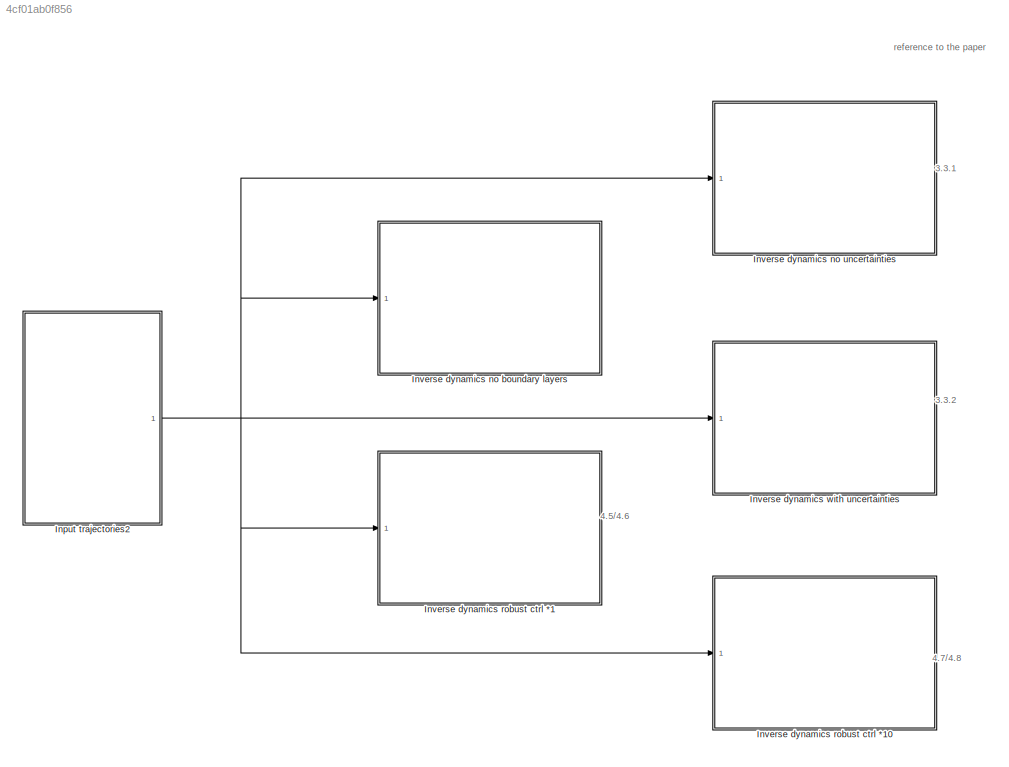
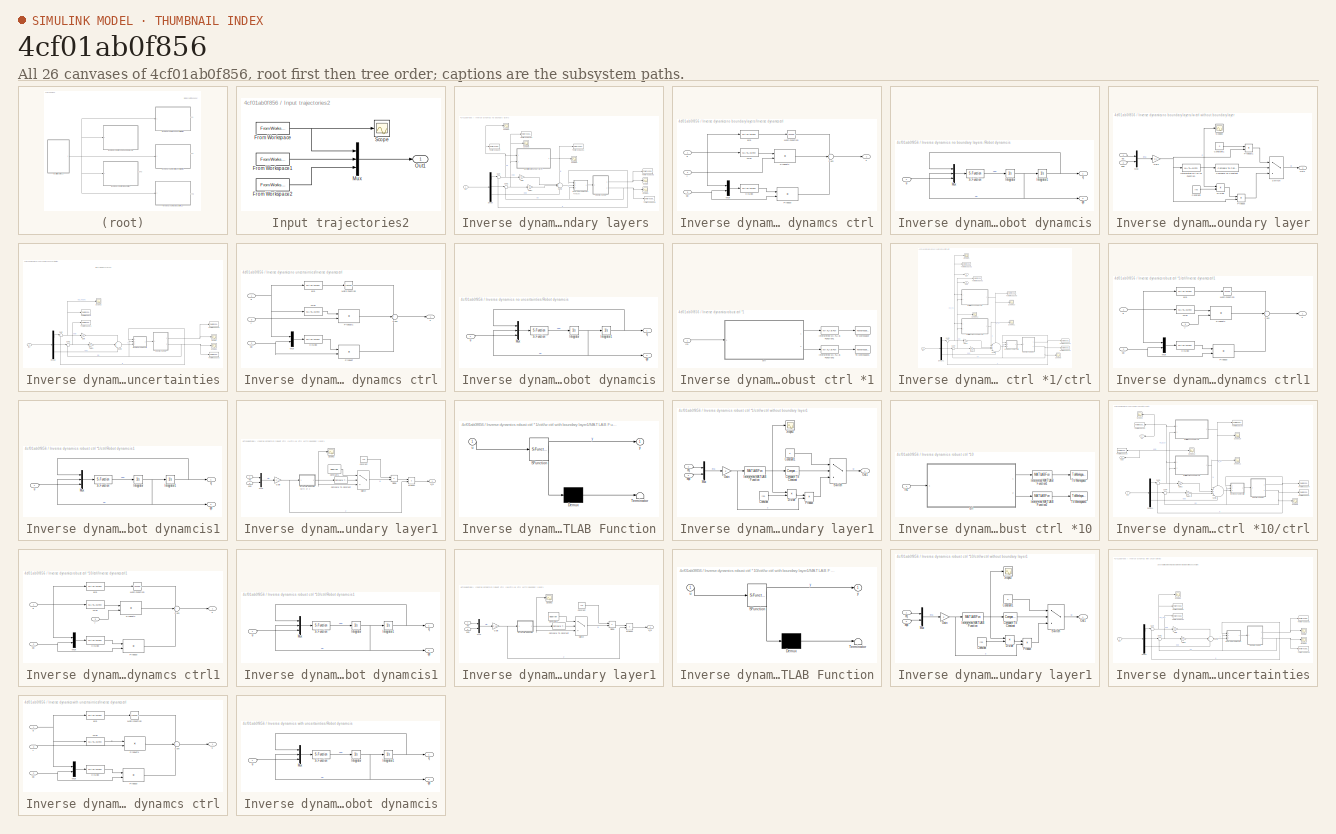
[diagram: thumbnail index - all 26 canvases of the model, root first then tree order]
MODEL slx_4cf01ab0f856
KIND model
CONFIG AbsTol = auto
CONFIG EnableMultiTasking = off
CONFIG FixedStep = 1e-3
CONFIG MaxStep = auto
CONFIG MinStep = auto
CONFIG RelTol = 1e-5
CONFIG SampleTimeConstraint = Unconstrained
CONFIG SolverName = FixedStepAuto
CONFIG StartTime = 0.0
CONFIG StopTime = 3
BLOCK [SubSystem] Input trajectories2
  Ports = [0, 1]
  RequestExecContextInheritance = off
BLOCK [FromWorkspace] Input trajectories2/From Workspace
  OutputAfterFinalValue = Holding final value
  VariableName = qqs
BLOCK [FromWorkspace] Input trajectories2/From Workspace1
  OutputAfterFinalValue = Holding final value
  VariableName = qqsd
BLOCK [FromWorkspace] Input trajectories2/From Workspace2
  OutputAfterFinalValue = Holding final value
  VariableName = qqsdd
BLOCK [Mux] Input trajectories2/Mux
  DisplayOption = bar
  Inputs = 3
  Ports = [3, 1]
BLOCK [Outport] Input trajectories2/Out1
  VectorParamsAs1DForOutWhenUnconnected = off
BLOCK [Scope] Input trajectories2/Scope
  Floating = off
  NumInputPorts = 1
  Ports = [1]
  ScopeSpecificationString = Simulink.scopes.TimeScopeBlockCfg('CurrentConfiguration', extmgr.ConfigurationSet(extmgr.Configuration('Core','General UI',true),extmgr.Configuration('Core','Source UI',true),extmgr.Configuration('Sources','WiredSimulink',true),extmgr.Configuration('Visuals','Time Domain',true,'SerializedDisplays',{struct('MinYLimReal','-0.04999','MaxYLimReal','0.45','YLabelReal','','MinYLimMag','0.00000','MaxYLim...<+1457ch>
BLOCK [SubSystem] Inverse dynamics no boundary layers 
  Commented = on
  Ports = [1]
  RequestExecContextInheritance = off
BLOCK [Demux] Inverse dynamics no boundary layers /Demux
  Outputs = 3
  Ports = [1, 3]
BLOCK [Gain] Inverse dynamics no boundary layers /Gain
  Gain = Kp
  Multiplication = Matrix(K*u) (u vector)
BLOCK [Gain] Inverse dynamics no boundary layers /Gain1
  Gain = Kd
  Multiplication = Matrix(K*u) (u vector)
BLOCK [Inport] Inverse dynamics no boundary layers /In1
BLOCK [SubSystem] Inverse dynamics no boundary layers /Inverse dynamcs ctrl
  Ports = [3, 1]
  RequestExecContextInheritance = off
BLOCK [MATLABFcn] Inverse dynamics no boundary layers /Inverse dynamcs ctrl/C(q,qd)
  MATLABFcn = coriolis(mdl, u')
  Output1D = off
  OutputDimensions = [p560.n p560.n]
  Ports = [1, 1]
BLOCK [MATLABFcn] Inverse dynamics no boundary layers /Inverse dynamcs ctrl/M(q)
  MATLABFcn = inertia(mdl, u')
  Output1D = off
  OutputDimensions = [p560.n p560.n]
  Ports = [1, 1]
BLOCK [Math] Inverse dynamics no boundary layers /Inverse dynamcs ctrl/Math Function
  Operator = transpose
  Ports = [1, 1]
  SignedPower = on
BLOCK [Mux] Inverse dynamics no boundary layers /Inverse dynamcs ctrl/Mux
  DisplayOption = bar
  Inputs = 2
  Ports = [2, 1]
BLOCK [Product] Inverse dynamics no boundary layers /Inverse dynamcs ctrl/Product
  Multiplication = Matrix(*)
  Ports = [2, 1]
BLOCK [Product] Inverse dynamics no boundary layers /Inverse dynamcs ctrl/Product1
  Multiplication = Matrix(*)
  Ports = [2, 1]
BLOCK [Sum] Inverse dynamics no boundary layers /Inverse dynamcs ctrl/Sum
  Inputs = +++
  Ports = [3, 1]
BLOCK [MATLABFcn] Inverse dynamics no boundary layers /Inverse dynamcs ctrl/g(q)
  MATLABFcn = gravload(mdl, u')
  Output1D = off
  OutputDimensions = [1 p560.n]
  Ports = [1, 1]
BLOCK [Inport] Inverse dynamics no boundary layers /Inverse dynamcs ctrl/q
BLOCK [Inport] Inverse dynamics no boundary layers /Inverse dynamcs ctrl/qd
  Port = 3
BLOCK [Outport] Inverse dynamics no boundary layers /Inverse dynamcs ctrl/u
  VectorParamsAs1DForOutWhenUnconnected = off
BLOCK [Inport] Inverse dynamics no boundary layers /Inverse dynamcs ctrl/y
  Port = 2
BLOCK [SubSystem] Inverse dynamics no boundary layers /Robot dynamcis
  Ports = [1, 2]
  RequestExecContextInheritance = off
BLOCK [Integrator] Inverse dynamics no boundary layers /Robot dynamcis/Integrator
  Ports = [1, 1]
BLOCK [Integrator] Inverse dynamics no boundary layers /Robot dynamcis/Integrator1
  InitialCondition = q_init
  Ports = [1, 1]
BLOCK [Mux] Inverse dynamics no boundary layers /Robot dynamcis/Mux
  DisplayOption = bar
  Inputs = 3
  Ports = [3, 1]
BLOCK [S-Function] Inverse dynamics no boundary layers /Robot dynamcis/S-Function
  EnableBusSupport = off
  FunctionName = slaccel
  Parameters = Realmdl
  Ports = [1, 1]
  SFcnIsStateOwnerBlock = off
  SFunctionDeploymentMode = off
BLOCK [Outport] Inverse dynamics no boundary layers /Robot dynamcis/q
  VectorParamsAs1DForOutWhenUnconnected = off
BLOCK [Outport] Inverse dynamics no boundary layers /Robot dynamcis/qd
  Port = 2
  VectorParamsAs1DForOutWhenUnconnected = off
BLOCK [Inport] Inverse dynamics no boundary layers /Robot dynamcis/u
BLOCK [Scope] Inverse dynamics no boundary layers /Scope
  Floating = off
  NumInputPorts = 1
  Ports = [1]
  ScopeSpecificationString = Simulink.scopes.TimeScopeBlockCfg('CurrentConfiguration', extmgr.ConfigurationSet(extmgr.Configuration('Core','General UI',true),extmgr.Configuration('Core','Source UI',true),extmgr.Configuration('Sources','WiredSimulink',true,'DataLoggingVariableName','ScopeData1'),extmgr.Configuration('Visuals','Time Domain',true,'SerializedDisplays',{struct('MinYLimReal','-0.0125','MaxYLimReal','0.11251','YLabe...<+1450ch>
BLOCK [Scope] Inverse dynamics no boundary layers /Scope1
  Floating = off
  NumInputPorts = 1
  Ports = [1]
  ScopeSpecificationString = Simulink.scopes.TimeScopeBlockCfg('CurrentConfiguration', extmgr.ConfigurationSet(extmgr.Configuration('Core','General UI',true),extmgr.Configuration('Core','Source UI',true),extmgr.Configuration('Sources','WiredSimulink',true,'DataLoggingVariableName','ScopeData2'),extmgr.Configuration('Visuals','Time Domain',true),extmgr.Configuration('Tools','Plot Navigation',true),extmgr.Configuration('Tools',...<+40ch>  <repeated x3 — deduplicated; at blocks: Scope1>
BLOCK [Scope] Inverse dynamics no boundary layers /Scope2
  Floating = off
  NumInputPorts = 1
  Ports = [1]
  ScopeSpecificationString = Simulink.scopes.TimeScopeBlockCfg('CurrentConfiguration', extmgr.ConfigurationSet(extmgr.Configuration('Core','General UI',true),extmgr.Configuration('Core','Source UI',true),extmgr.Configuration('Sources','WiredSimulink',true,'DataLoggingVariableName','ScopeData3'),extmgr.Configuration('Visuals','Time Domain',true,'SerializedDisplays',{struct('MinYLimReal','-0.0003','MaxYLimReal','0.00025','YLabe...<+1498ch>
BLOCK [Scope] Inverse dynamics no boundary layers /Scope3
  Floating = off
  NumInputPorts = 1
  Ports = [1]
  ScopeSpecificationString = Simulink.scopes.TimeScopeBlockCfg('CurrentConfiguration', extmgr.ConfigurationSet(extmgr.Configuration('Core','General UI',true),extmgr.Configuration('Core','Source UI',true),extmgr.Configuration('Sources','WiredSimulink',true,'DataLoggingVariableName','ScopeData1'),extmgr.Configuration('Visuals','Time Domain',true,'SerializedDisplays',{struct('MinYLimReal','-24.99999','MaxYLimReal','24.99997','YL...<+1802ch>
BLOCK [Scope] Inverse dynamics no boundary layers /Scope5
  Floating = off
  NumInputPorts = 1
  Ports = [1]
  ScopeSpecificationString = Simulink.scopes.TimeScopeBlockCfg('CurrentConfiguration', extmgr.ConfigurationSet(extmgr.Configuration('Core','General UI',true),extmgr.Configuration('Core','Source UI',true),extmgr.Configuration('Sources','WiredSimulink',true,'DataLoggingVariableName','ScopeData1'),extmgr.Configuration('Visuals','Time Domain',true,'SerializedDisplays',{struct('MinYLimReal','-0.84516','MaxYLimReal','0.09969','YLab...<+1475ch>
BLOCK [Sum] Inverse dynamics no boundary layers /Sum
  Inputs = |+-
  Ports = [2, 1]
BLOCK [Sum] Inverse dynamics no boundary layers /Sum1
  Inputs = |+-
  Ports = [2, 1]
BLOCK [Sum] Inverse dynamics no boundary layers /Sum2
  Inputs = ++++
  Ports = [4, 1]
BLOCK [ToWorkspace] Inverse dynamics no boundary layers /To Workspace
  FixptAsFi = on
  MaxDataPoints = inf
  Ports = [1]
  SampleTime = -1
  VariableName = eq_nobl
BLOCK [ToWorkspace] Inverse dynamics no boundary layers /To Workspace1
  FixptAsFi = on
  MaxDataPoints = inf
  Ports = [1]
  SampleTime = -1
  VariableName = w_nobl
BLOCK [ToWorkspace] Inverse dynamics no boundary layers /To Workspace2
  FixptAsFi = on
  MaxDataPoints = inf
  Ports = [1]
  SampleTime = -1
  VariableName = q_nobl
BLOCK [ToWorkspace] Inverse dynamics no boundary layers /To Workspace3
  FixptAsFi = on
  MaxDataPoints = inf
  Ports = [1]
  SampleTime = -1
  VariableName = qd_nobl
BLOCK [ToWorkspace] Inverse dynamics no boundary layers /To Workspace4
  FixptAsFi = on
  MaxDataPoints = inf
  Ports = [1]
  SampleTime = -1
  VariableName = eqd_nobl
BLOCK [SubSystem] Inverse dynamics no boundary layers /w ctrl without boundary layer
  Ports = [2, 1]
  RequestExecContextInheritance = off
BLOCK [Reference] Inverse dynamics no boundary layers /w ctrl without boundary layer/Compare To Constant  REF=simulink/Logic and Bit
Operations/Compare
To Constant
  Ports = [1, 1]
  SourceBlock = simulink/Logic and Bit\nOperations/Compare\nTo Constant
  SourceProductBaseCode = SL
  SourceType = Compare To Constant
BLOCK [Constant] Inverse dynamics no boundary layers /w ctrl without boundary layer/Constant
  Value = rho
BLOCK [Constant] Inverse dynamics no boundary layers /w ctrl without boundary layer/Constant1
  Value = 0
BLOCK [Product] Inverse dynamics no boundary layers /w ctrl without boundary layer/Divide
  Inputs = /*
  Ports = [2, 1]
BLOCK [Gain] Inverse dynamics no boundary layers /w ctrl without boundary layer/Gain
  Gain = Z_1
  Multiplication = Matrix(K*u) (u vector)
BLOCK [MATLABFcn] Inverse dynamics no boundary layers /w ctrl without boundary layer/Interpreted MATLAB Function
  MATLABFcn = norm(u,2)
  Ports = [1, 1]
BLOCK [Mux] Inverse dynamics no boundary layers /w ctrl without boundary layer/Mux
  DisplayOption = bar
  Inputs = 2
  Ports = [2, 1]
BLOCK [Outport] Inverse dynamics no boundary layers /w ctrl without boundary layer/Out1
  VectorParamsAs1DForOutWhenUnconnected = off
BLOCK [Product] Inverse dynamics no boundary layers /w ctrl without boundary layer/Product
  Ports = [2, 1]
BLOCK [Product] Inverse dynamics no boundary layers /w ctrl without boundary layer/Product1
  Ports = [2, 1]
BLOCK [Scope] Inverse dynamics no boundary layers /w ctrl without boundary layer/Scope2
  Floating = off
  NumInputPorts = 1
  Ports = [1]
  ScopeSpecificationString = Simulink.scopes.TimeScopeBlockCfg('CurrentConfiguration', extmgr.ConfigurationSet(extmgr.Configuration('Core','General UI',true),extmgr.Configuration('Core','Source UI',true),extmgr.Configuration('Sources','WiredSimulink',true,'DataLoggingVariableName','ScopeData5'),extmgr.Configuration('Visuals','Time Domain',true,'SerializedDisplays',{struct('MinYLimReal','-0.00003','MaxYLimReal','0.00026','YLab...<+1689ch>
BLOCK [Switch] Inverse dynamics no boundary layers /w ctrl without boundary layer/Switch
  InputSameDT = off
  SaturateOnIntegerOverflow = off
  ZeroCross = off
BLOCK [Inport] Inverse dynamics no boundary layers /w ctrl without boundary layer/eq
BLOCK [Inport] Inverse dynamics no boundary layers /w ctrl without boundary layer/eqd
  Port = 2
BLOCK [SubSystem] Inverse dynamics no uncertainties
  Commented = on
  Ports = [1]
  RequestExecContextInheritance = off
BLOCK [Demux] Inverse dynamics no uncertainties/Demux
  Outputs = 3
  Ports = [1, 3]
BLOCK [Gain] Inverse dynamics no uncertainties/Gain
  Gain = Kp
  Multiplication = Matrix(K*u) (u vector)
BLOCK [Gain] Inverse dynamics no uncertainties/Gain1
  Gain = Kd
  Multiplication = Matrix(K*u) (u vector)
BLOCK [Inport] Inverse dynamics no uncertainties/In1
BLOCK [SubSystem] Inverse dynamics no uncertainties/Inverse dynamcs ctrl
  Ports = [3, 1]
  RequestExecContextInheritance = off
BLOCK [MATLABFcn] Inverse dynamics no uncertainties/Inverse dynamcs ctrl/C(q,qd)
  MATLABFcn = coriolis(mdl, u')
  Output1D = off
  OutputDimensions = [p560.n p560.n]
  Ports = [1, 1]
BLOCK [MATLABFcn] Inverse dynamics no uncertainties/Inverse dynamcs ctrl/M(q)
  MATLABFcn = inertia(mdl, u')
  Output1D = off
  OutputDimensions = [p560.n p560.n]
  Ports = [1, 1]
BLOCK [Math] Inverse dynamics no uncertainties/Inverse dynamcs ctrl/Math Function
  Operator = transpose
  Ports = [1, 1]
  SignedPower = on
BLOCK [Mux] Inverse dynamics no uncertainties/Inverse dynamcs ctrl/Mux
  DisplayOption = bar
  Inputs = 2
  Ports = [2, 1]
BLOCK [Product] Inverse dynamics no uncertainties/Inverse dynamcs ctrl/Product
  Multiplication = Matrix(*)
  Ports = [2, 1]
BLOCK [Product] Inverse dynamics no uncertainties/Inverse dynamcs ctrl/Product1
  Multiplication = Matrix(*)
  Ports = [2, 1]
BLOCK [Sum] Inverse dynamics no uncertainties/Inverse dynamcs ctrl/Sum
  Inputs = +++
  Ports = [3, 1]
BLOCK [MATLABFcn] Inverse dynamics no uncertainties/Inverse dynamcs ctrl/g(q)
  MATLABFcn = gravload(mdl, u')
  Output1D = off
  OutputDimensions = [1 p560.n]
  Ports = [1, 1]
BLOCK [Inport] Inverse dynamics no uncertainties/Inverse dynamcs ctrl/q
BLOCK [Inport] Inverse dynamics no uncertainties/Inverse dynamcs ctrl/qd
  Port = 2
BLOCK [Outport] Inverse dynamics no uncertainties/Inverse dynamcs ctrl/u
  VectorParamsAs1DForOutWhenUnconnected = off
BLOCK [Inport] Inverse dynamics no uncertainties/Inverse dynamcs ctrl/y
  Port = 3
BLOCK [SubSystem] Inverse dynamics no uncertainties/Robot dynamcis
  Ports = [1, 2]
  RequestExecContextInheritance = off
BLOCK [Integrator] Inverse dynamics no uncertainties/Robot dynamcis/Integrator
  Ports = [1, 1]
BLOCK [Integrator] Inverse dynamics no uncertainties/Robot dynamcis/Integrator1
  InitialCondition = q_init
  Ports = [1, 1]
BLOCK [Mux] Inverse dynamics no uncertainties/Robot dynamcis/Mux
  DisplayOption = bar
  Inputs = 3
  Ports = [3, 1]
BLOCK [S-Function] Inverse dynamics no uncertainties/Robot dynamcis/S-Function
  EnableBusSupport = off
  FunctionName = slaccel
  Parameters = Realmdl
  Ports = [1, 1]
  SFcnIsStateOwnerBlock = off
  SFunctionDeploymentMode = off
BLOCK [Outport] Inverse dynamics no uncertainties/Robot dynamcis/q
  VectorParamsAs1DForOutWhenUnconnected = off
BLOCK [Outport] Inverse dynamics no uncertainties/Robot dynamcis/qd
  Port = 2
  VectorParamsAs1DForOutWhenUnconnected = off
BLOCK [Inport] Inverse dynamics no uncertainties/Robot dynamcis/u
BLOCK [Scope] Inverse dynamics no uncertainties/Scope
  Floating = off
  NumInputPorts = 1
  Ports = [1]
  ScopeSpecificationString = Simulink.scopes.TimeScopeBlockCfg('CurrentConfiguration', extmgr.ConfigurationSet(extmgr.Configuration('Core','General UI',true),extmgr.Configuration('Core','Source UI',true),extmgr.Configuration('Sources','WiredSimulink',true,'DataLoggingVariableName','ScopeData1'),extmgr.Configuration('Visuals','Time Domain',true,'SerializedDisplays',{struct('MinYLimReal','-0.0502','MaxYLimReal','0.45176','YLabe...<+1752ch>
BLOCK [Scope] Inverse dynamics no uncertainties/Scope1
  Floating = off
  NumInputPorts = 1
  Ports = [1]
BLOCK [Scope] Inverse dynamics no uncertainties/Scope2
  Floating = off
  NumInputPorts = 1
  Ports = [1]
  ScopeSpecificationString = Simulink.scopes.TimeScopeBlockCfg('CurrentConfiguration', extmgr.ConfigurationSet(extmgr.Configuration('Core','General UI',true),extmgr.Configuration('Core','Source UI',true),extmgr.Configuration('Sources','WiredSimulink',true,'DataLoggingVariableName','ScopeData3'),extmgr.Configuration('Visuals','Time Domain',true,'SerializedDisplays',{struct('MinYLimReal','-0.00136','MaxYLimReal','0.00165','YLab...<+1539ch>
BLOCK [Sum] Inverse dynamics no uncertainties/Sum
  Inputs = |+-
  Ports = [2, 1]
BLOCK [Sum] Inverse dynamics no uncertainties/Sum1
  Inputs = |+-
  Ports = [2, 1]
BLOCK [Sum] Inverse dynamics no uncertainties/Sum2
  Inputs = +++
  Ports = [3, 1]
BLOCK [ToWorkspace] Inverse dynamics no uncertainties/To Workspace
  FixptAsFi = on
  MaxDataPoints = inf
  Ports = [1]
  SampleTime = -1
  VariableName = eq_no_unc
BLOCK [ToWorkspace] Inverse dynamics no uncertainties/To Workspace1
  FixptAsFi = on
  MaxDataPoints = inf
  Ports = [1]
  SampleTime = -1
  VariableName = eqd_no_unc
BLOCK [ToWorkspace] Inverse dynamics no uncertainties/To Workspace2
  FixptAsFi = on
  MaxDataPoints = inf
  Ports = [1]
  SampleTime = -1
  VariableName = q_no_unc
BLOCK [ToWorkspace] Inverse dynamics no uncertainties/To Workspace3
  FixptAsFi = on
  MaxDataPoints = inf
  Ports = [1]
  SampleTime = -1
  VariableName = qd_no_unc
BLOCK [SubSystem] Inverse dynamics robust ctrl *1
  Ports = [1]
  RequestExecContextInheritance = off
BLOCK [Inport] Inverse dynamics robust ctrl *1/In1
BLOCK [MATLABFcn] Inverse dynamics robust ctrl *1/Interpreted MATLAB Function1
  MATLABFcn = norm(u,2)
  OutputDimensions = 1
  Ports = [1, 1]
BLOCK [MATLABFcn] Inverse dynamics robust ctrl *1/Interpreted MATLAB Function2
  MATLABFcn = norm(u,2)
  OutputDimensions = 1
  Ports = [1, 1]
BLOCK [ToWorkspace] Inverse dynamics robust ctrl *1/To Workspace
  FixptAsFi = on
  MaxDataPoints = inf
  Ports = [1]
  SampleTime = -1
  VariableName = norm_eq_rc1
BLOCK [ToWorkspace] Inverse dynamics robust ctrl *1/To Workspace1
  FixptAsFi = on
  MaxDataPoints = inf
  Ports = [1]
  SampleTime = -1
  VariableName = norm_eqd_rc1
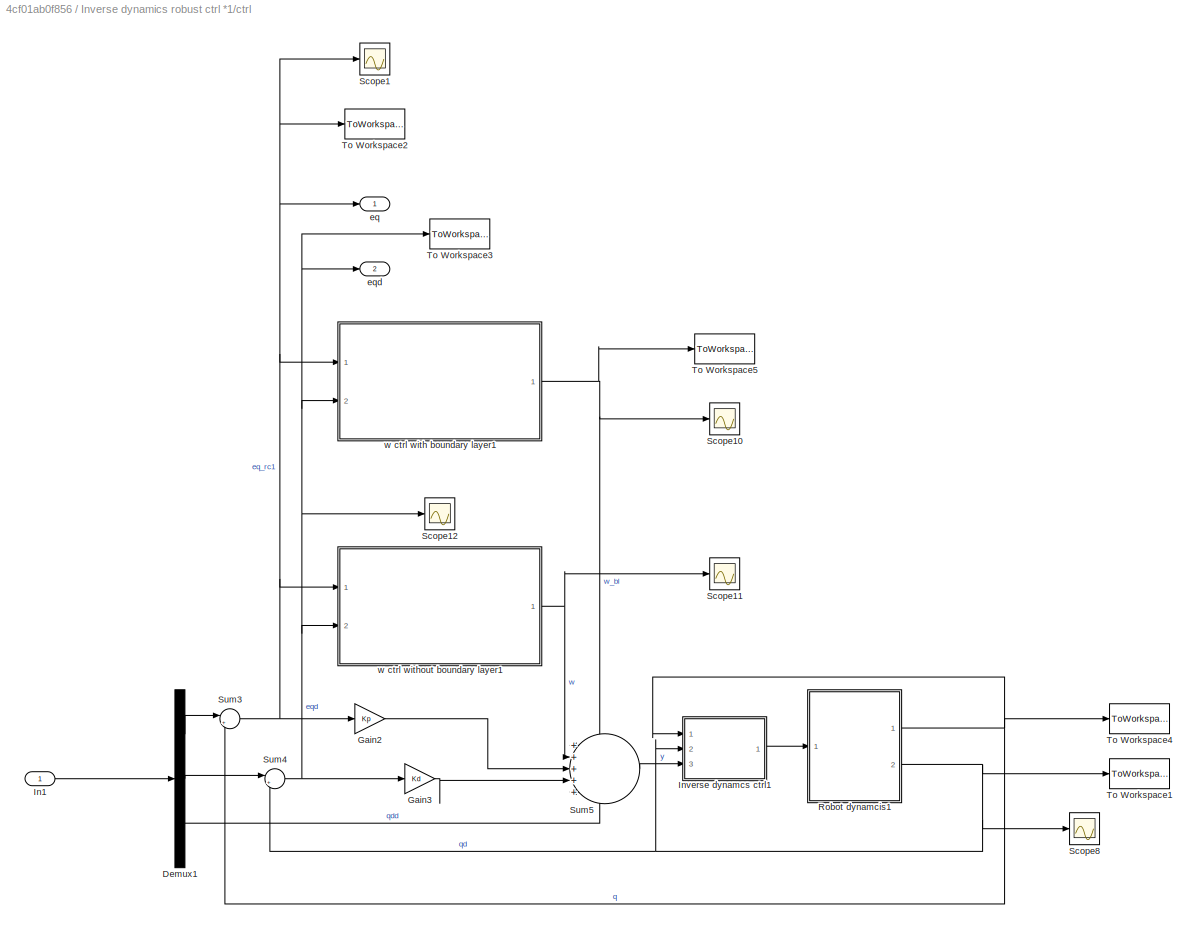
BLOCK [SubSystem] Inverse dynamics robust ctrl *1/ctrl
  Ports = [1, 2]
  RequestExecContextInheritance = off
BLOCK [Demux] Inverse dynamics robust ctrl *1/ctrl/Demux1
  Outputs = 3
  Ports = [1, 3]
BLOCK [Gain] Inverse dynamics robust ctrl *1/ctrl/Gain2
  Gain = Kp
  Multiplication = Matrix(K*u) (u vector)
BLOCK [Gain] Inverse dynamics robust ctrl *1/ctrl/Gain3
  Gain = Kd
  Multiplication = Matrix(K*u) (u vector)
BLOCK [Inport] Inverse dynamics robust ctrl *1/ctrl/In1
BLOCK [SubSystem] Inverse dynamics robust ctrl *1/ctrl/Inverse dynamcs ctrl1
  Ports = [3, 1]
  RequestExecContextInheritance = off
BLOCK [MATLABFcn] Inverse dynamics robust ctrl *1/ctrl/Inverse dynamcs ctrl1/C(q,qd)
  MATLABFcn = coriolis(mdl, u')
  Output1D = off
  OutputDimensions = [p560.n p560.n]
  Ports = [1, 1]
BLOCK [MATLABFcn] Inverse dynamics robust ctrl *1/ctrl/Inverse dynamcs ctrl1/M(q)
  MATLABFcn = inertia(mdl, u')
  Output1D = off
  OutputDimensions = [p560.n p560.n]
  Ports = [1, 1]
BLOCK [Math] Inverse dynamics robust ctrl *1/ctrl/Inverse dynamcs ctrl1/Math Function
  Operator = transpose
  Ports = [1, 1]
  SignedPower = on
BLOCK [Mux] Inverse dynamics robust ctrl *1/ctrl/Inverse dynamcs ctrl1/Mux
  DisplayOption = bar
  Inputs = 2
  Ports = [2, 1]
BLOCK [Product] Inverse dynamics robust ctrl *1/ctrl/Inverse dynamcs ctrl1/Product
  Multiplication = Matrix(*)
  Ports = [2, 1]
BLOCK [Product] Inverse dynamics robust ctrl *1/ctrl/Inverse dynamcs ctrl1/Product1
  Multiplication = Matrix(*)
  Ports = [2, 1]
BLOCK [Sum] Inverse dynamics robust ctrl *1/ctrl/Inverse dynamcs ctrl1/Sum
  Inputs = +++
  Ports = [3, 1]
BLOCK [MATLABFcn] Inverse dynamics robust ctrl *1/ctrl/Inverse dynamcs ctrl1/g(q)
  MATLABFcn = gravload(mdl, u')
  Output1D = off
  OutputDimensions = [1 p560.n]
  Ports = [1, 1]
BLOCK [Inport] Inverse dynamics robust ctrl *1/ctrl/Inverse dynamcs ctrl1/q
BLOCK [Inport] Inverse dynamics robust ctrl *1/ctrl/Inverse dynamcs ctrl1/qd
  Port = 2
BLOCK [Outport] Inverse dynamics robust ctrl *1/ctrl/Inverse dynamcs ctrl1/u
  VectorParamsAs1DForOutWhenUnconnected = off
BLOCK [Inport] Inverse dynamics robust ctrl *1/ctrl/Inverse dynamcs ctrl1/y
  Port = 3
BLOCK [SubSystem] Inverse dynamics robust ctrl *1/ctrl/Robot dynamcis1
  Ports = [1, 2]
  RequestExecContextInheritance = off
BLOCK [Integrator] Inverse dynamics robust ctrl *1/ctrl/Robot dynamcis1/Integrator
  Ports = [1, 1]
BLOCK [Integrator] Inverse dynamics robust ctrl *1/ctrl/Robot dynamcis1/Integrator1
  InitialCondition = q_init
  Ports = [1, 1]
BLOCK [Mux] Inverse dynamics robust ctrl *1/ctrl/Robot dynamcis1/Mux
  DisplayOption = bar
  Inputs = 3
  Ports = [3, 1]
BLOCK [S-Function] Inverse dynamics robust ctrl *1/ctrl/Robot dynamcis1/S-Function
  EnableBusSupport = off
  FunctionName = slaccel
  Parameters = Realmdl
  Ports = [1, 1]
  SFcnIsStateOwnerBlock = off
  SFunctionDeploymentMode = off
BLOCK [Outport] Inverse dynamics robust ctrl *1/ctrl/Robot dynamcis1/q
  VectorParamsAs1DForOutWhenUnconnected = off
BLOCK [Outport] Inverse dynamics robust ctrl *1/ctrl/Robot dynamcis1/qd
  Port = 2
  VectorParamsAs1DForOutWhenUnconnected = off
BLOCK [Inport] Inverse dynamics robust ctrl *1/ctrl/Robot dynamcis1/u
BLOCK [Scope] Inverse dynamics robust ctrl *1/ctrl/Scope1
  Floating = off
  NumInputPorts = 1
  Ports = [1]
  ScopeSpecificationString = Simulink.scopes.TimeScopeBlockCfg('CurrentConfiguration', extmgr.ConfigurationSet(extmgr.Configuration('Core','General UI',true),extmgr.Configuration('Core','Source UI',true),extmgr.Configuration('Sources','WiredSimulink',true,'DataLoggingVariableName','ScopeData1'),extmgr.Configuration('Visuals','Time Domain',true,'SerializedDisplays',{struct('MinYLimReal','-0.0096','MaxYLimReal','0.08644','YLabe...<+1796ch>
BLOCK [Scope] Inverse dynamics robust ctrl *1/ctrl/Scope10
  Floating = off
  NumInputPorts = 1
  Ports = [1]
  ScopeSpecificationString = Simulink.scopes.TimeScopeBlockCfg('CurrentConfiguration', extmgr.ConfigurationSet(extmgr.Configuration('Core','General UI',true),extmgr.Configuration('Core','Source UI',true),extmgr.Configuration('Sources','WiredSimulink',true,'DataLoggingVariableName','ScopeData1'),extmgr.Configuration('Visuals','Time Domain',true,'SerializedDisplays',{struct('MinYLimReal','-16.52293','MaxYLimReal','4.33232','YLa...<+1450ch>
BLOCK [Scope] Inverse dynamics robust ctrl *1/ctrl/Scope11
  Commented = on
  Floating = off
  NumInputPorts = 1
  Ports = [1]
  ScopeSpecificationString = Simulink.scopes.TimeScopeBlockCfg('CurrentConfiguration', extmgr.ConfigurationSet(extmgr.Configuration('Core','General UI',true),extmgr.Configuration('Core','Source UI',true),extmgr.Configuration('Sources','WiredSimulink',true,'DataLoggingVariableName','ScopeData2'),extmgr.Configuration('Visuals','Time Domain',true,'SerializedDisplays',{struct('MinYLimReal','-3.57143','MaxYLimReal','32.14286','YLa...<+1425ch>
BLOCK [Scope] Inverse dynamics robust ctrl *1/ctrl/Scope12
  Floating = off
  NumInputPorts = 1
  Ports = [1]
  ScopeSpecificationString = Simulink.scopes.TimeScopeBlockCfg('CurrentConfiguration', extmgr.ConfigurationSet(extmgr.Configuration('Core','General UI',true),extmgr.Configuration('Core','Source UI',true),extmgr.Configuration('Sources','WiredSimulink',true,'DataLoggingVariableName','ScopeData3'),extmgr.Configuration('Visuals','Time Domain',true,'SerializedDisplays',{struct('MinYLimReal','-0.91199','MaxYLimReal','0.10134','YLab...<+1787ch>
BLOCK [Scope] Inverse dynamics robust ctrl *1/ctrl/Scope8
  Floating = off
  NumInputPorts = 1
  Ports = [1]
  ScopeSpecificationString = Simulink.scopes.TimeScopeBlockCfg('CurrentConfiguration', extmgr.ConfigurationSet(extmgr.Configuration('Core','General UI',true),extmgr.Configuration('Core','Source UI',true),extmgr.Configuration('Sources','WiredSimulink',true,'DataLoggingVariableName','ScopeData6'),extmgr.Configuration('Visuals','Time Domain',true,'SerializedDisplays',{struct('MinYLimReal','-0.09424','MaxYLimReal','0.84797','YLab...<+1435ch>
BLOCK [Sum] Inverse dynamics robust ctrl *1/ctrl/Sum3
  Inputs = |+-
  Ports = [2, 1]
BLOCK [Sum] Inverse dynamics robust ctrl *1/ctrl/Sum4
  Inputs = |+-
  Ports = [2, 1]
BLOCK [Sum] Inverse dynamics robust ctrl *1/ctrl/Sum5
  Inputs = +++++
  Ports = [5, 1]
BLOCK [ToWorkspace] Inverse dynamics robust ctrl *1/ctrl/To Workspace1
  FixptAsFi = on
  MaxDataPoints = inf
  Ports = [1]
  SampleTime = -1
  VariableName = qd_rc1
BLOCK [ToWorkspace] Inverse dynamics robust ctrl *1/ctrl/To Workspace2
  FixptAsFi = on
  MaxDataPoints = inf
  Ports = [1]
  SampleTime = -1
  VariableName = eq_rc1
BLOCK [ToWorkspace] Inverse dynamics robust ctrl *1/ctrl/To Workspace3
  FixptAsFi = on
  MaxDataPoints = inf
  Ports = [1]
  SampleTime = -1
  VariableName = eqd_rc1
BLOCK [ToWorkspace] Inverse dynamics robust ctrl *1/ctrl/To Workspace4
  FixptAsFi = on
  MaxDataPoints = inf
  Ports = [1]
  SampleTime = -1
  VariableName = q_rc1
BLOCK [ToWorkspace] Inverse dynamics robust ctrl *1/ctrl/To Workspace5
  FixptAsFi = on
  MaxDataPoints = inf
  Ports = [1]
  SampleTime = -1
  VariableName = w_rc1
BLOCK [Outport] Inverse dynamics robust ctrl *1/ctrl/eq
  VectorParamsAs1DForOutWhenUnconnected = off
BLOCK [Outport] Inverse dynamics robust ctrl *1/ctrl/eqd
  Port = 2
  VectorParamsAs1DForOutWhenUnconnected = off
BLOCK [SubSystem] Inverse dynamics robust ctrl *1/ctrl/w ctrl with boundary layer1
  Ports = [2, 1]
  RequestExecContextInheritance = off
BLOCK [Reference] Inverse dynamics robust ctrl *1/ctrl/w ctrl with boundary layer1/Compare To Constant  REF=simulink/Logic and Bit
Operations/Compare
To Constant
  Ports = [1, 1]
  SourceBlock = simulink/Logic and Bit\nOperations/Compare\nTo Constant
  SourceProductBaseCode = SL
  SourceType = Compare To Constant
BLOCK [Constant] Inverse dynamics robust ctrl *1/ctrl/w ctrl with boundary layer1/Constant
  Value = rho
BLOCK [Constant] Inverse dynamics robust ctrl *1/ctrl/w ctrl with boundary layer1/Constant1
  Value = epsilon
BLOCK [Product] Inverse dynamics robust ctrl *1/ctrl/w ctrl with boundary layer1/Divide
  Inputs = */
  Ports = [2, 1]
BLOCK [Gain] Inverse dynamics robust ctrl *1/ctrl/w ctrl with boundary layer1/Gain
  Gain = Z_1
  Multiplication = Matrix(K*u) (u vector)
BLOCK [SubSystem] Inverse dynamics robust ctrl *1/ctrl/w ctrl with boundary layer1/MATLAB Function
  ErrorFcn = Stateflow.Translate.translate
  PermitHierarchicalResolution = ExplicitOnly
  Ports = [1, 1]
  RequestExecContextInheritance = off
  SFBlockType = MATLAB Function
  TreatAsAtomicUnit = on
BLOCK [Demux] Inverse dynamics robust ctrl *1/ctrl/w ctrl with boundary layer1/MATLAB Function/ Demux 
  Outputs = 1
  Ports = [1, 1]
BLOCK [S-Function] Inverse dynamics robust ctrl *1/ctrl/w ctrl with boundary layer1/MATLAB Function/ SFunction 
  EnableBusSupport = on
  FunctionName = sf_sfun
  PortCounts = [1 2]
  Ports = [1, 2]
  SFcnIsStateOwnerBlock = off
  SFunctionDeploymentMode = off
  Tag = Stateflow S-Function 1
BLOCK [Terminator] Inverse dynamics robust ctrl *1/ctrl/w ctrl with boundary layer1/MATLAB Function/ Terminator 
BLOCK [Inport] Inverse dynamics robust ctrl *1/ctrl/w ctrl with boundary layer1/MATLAB Function/u
BLOCK [Outport] Inverse dynamics robust ctrl *1/ctrl/w ctrl with boundary layer1/MATLAB Function/y
  VectorParamsAs1DForOutWhenUnconnected = off
BLOCK [Mux] Inverse dynamics robust ctrl *1/ctrl/w ctrl with boundary layer1/Mux
  DisplayOption = bar
  Inputs = 2
  Ports = [2, 1]
BLOCK [Product] Inverse dynamics robust ctrl *1/ctrl/w ctrl with boundary layer1/Product
  Ports = [2, 1]
BLOCK [Scope] Inverse dynamics robust ctrl *1/ctrl/w ctrl with boundary layer1/Scope2
  Floating = off
  NumInputPorts = 1
  Ports = [1]
  ScopeSpecificationString = Simulink.scopes.TimeScopeBlockCfg('CurrentConfiguration', extmgr.ConfigurationSet(extmgr.Configuration('Core','General UI',true),extmgr.Configuration('Core','Source UI',true),extmgr.Configuration('Sources','WiredSimulink',true,'DataLoggingVariableName','ScopeData5'),extmgr.Configuration('Visuals','Time Domain',true,'SerializedDisplays',{struct('MinYLimReal','-0.00367','MaxYLimReal','0.03306','YLab...<+1422ch>
BLOCK [Switch] Inverse dynamics robust ctrl *1/ctrl/w ctrl with boundary layer1/Switch
  Criteria = u2 > Threshold
  InputSameDT = off
  SaturateOnIntegerOverflow = off
  Threshold = 0.5
  ZeroCross = off
BLOCK [Inport] Inverse dynamics robust ctrl *1/ctrl/w ctrl with boundary layer1/eq
BLOCK [Inport] Inverse dynamics robust ctrl *1/ctrl/w ctrl with boundary layer1/eqd
  Port = 2
BLOCK [Outport] Inverse dynamics robust ctrl *1/ctrl/w ctrl with boundary layer1/w_bl
  VectorParamsAs1DForOutWhenUnconnected = off
BLOCK [SubSystem] Inverse dynamics robust ctrl *1/ctrl/w ctrl without boundary layer1
  Commented = on
  Ports = [2, 1]
  RequestExecContextInheritance = off
BLOCK [Reference] Inverse dynamics robust ctrl *1/ctrl/w ctrl without boundary layer1/Compare To Constant  REF=simulink/Logic and Bit
Operations/Compare
To Constant
  Ports = [1, 1]
  SourceBlock = simulink/Logic and Bit\nOperations/Compare\nTo Constant
  SourceProductBaseCode = SL
  SourceType = Compare To Constant
BLOCK [Constant] Inverse dynamics robust ctrl *1/ctrl/w ctrl without boundary layer1/Constant
  Value = rho
BLOCK [Constant] Inverse dynamics robust ctrl *1/ctrl/w ctrl without boundary layer1/Constant1
  Value = 0
BLOCK [Product] Inverse dynamics robust ctrl *1/ctrl/w ctrl without boundary layer1/Divide
  Inputs = /*
  Ports = [2, 1]
BLOCK [Gain] Inverse dynamics robust ctrl *1/ctrl/w ctrl without boundary layer1/Gain
  Gain = Z
  Multiplication = Matrix(K*u) (u vector)
BLOCK [MATLABFcn] Inverse dynamics robust ctrl *1/ctrl/w ctrl without boundary layer1/Interpreted MATLAB Function
  MATLABFcn = norm(u)
  Ports = [1, 1]
BLOCK [Mux] Inverse dynamics robust ctrl *1/ctrl/w ctrl without boundary layer1/Mux
  DisplayOption = bar
  Inputs = 2
  Ports = [2, 1]
BLOCK [Outport] Inverse dynamics robust ctrl *1/ctrl/w ctrl without boundary layer1/Out1
  VectorParamsAs1DForOutWhenUnconnected = off
BLOCK [Product] Inverse dynamics robust ctrl *1/ctrl/w ctrl without boundary layer1/Product
  Ports = [2, 1]
BLOCK [Scope] Inverse dynamics robust ctrl *1/ctrl/w ctrl without boundary layer1/Scope2
  Floating = off
  NumInputPorts = 1
  Ports = [1]
  ScopeSpecificationString = Simulink.scopes.TimeScopeBlockCfg('CurrentConfiguration', extmgr.ConfigurationSet(extmgr.Configuration('Core','General UI',true),extmgr.Configuration('Core','Source UI',true),extmgr.Configuration('Sources','WiredSimulink',true,'DataLoggingVariableName','ScopeData5'),extmgr.Configuration('Visuals','Time Domain',true,'SerializedDisplays',{struct('MinYLimReal','-0.00001','MaxYLimReal','0.00011','YLab...<+1415ch>
BLOCK [Switch] Inverse dynamics robust ctrl *1/ctrl/w ctrl without boundary layer1/Switch
  Criteria = u2 ~= 0
  InputSameDT = off
  SaturateOnIntegerOverflow = off
  ZeroCross = off
BLOCK [Inport] Inverse dynamics robust ctrl *1/ctrl/w ctrl without boundary layer1/eq
BLOCK [Inport] Inverse dynamics robust ctrl *1/ctrl/w ctrl without boundary layer1/eqd
  Port = 2
BLOCK [SubSystem] Inverse dynamics robust ctrl *10
  Commented = on
  Ports = [1]
  RequestExecContextInheritance = off
BLOCK [Inport] Inverse dynamics robust ctrl *10/In1
BLOCK [MATLABFcn] Inverse dynamics robust ctrl *10/Interpreted MATLAB Function1
  MATLABFcn = norm(u,2)
  OutputDimensions = 1
  Ports = [1, 1]
BLOCK [MATLABFcn] Inverse dynamics robust ctrl *10/Interpreted MATLAB Function2
  MATLABFcn = norm(u,2)
  OutputDimensions = 1
  Ports = [1, 1]
BLOCK [ToWorkspace] Inverse dynamics robust ctrl *10/To Workspace
  FixptAsFi = on
  MaxDataPoints = inf
  Ports = [1]
  SampleTime = -1
  VariableName = norm_eq_rc10
BLOCK [ToWorkspace] Inverse dynamics robust ctrl *10/To Workspace1
  MaxDataPoints = inf
  Ports = [1]
  SampleTime = -1
  VariableName = norm_eqd_rc10
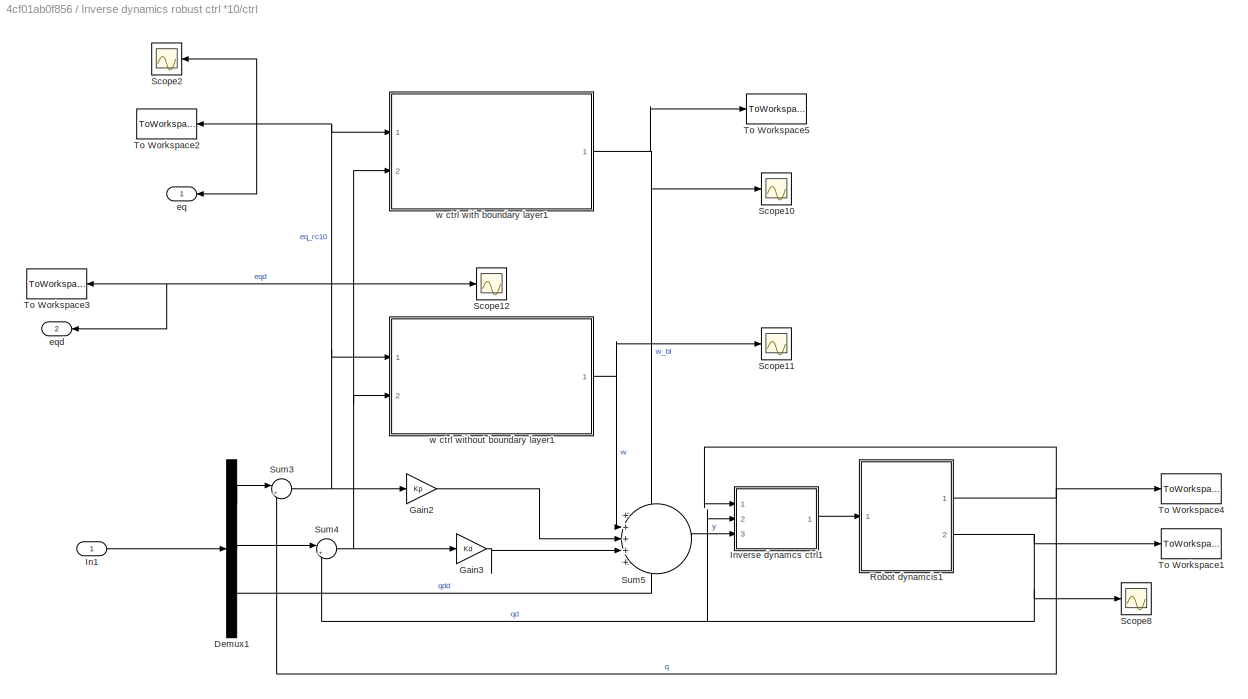
BLOCK [SubSystem] Inverse dynamics robust ctrl *10/ctrl
  Ports = [1, 2]
  RequestExecContextInheritance = off
BLOCK [Demux] Inverse dynamics robust ctrl *10/ctrl/Demux1
  Outputs = 3
  Ports = [1, 3]
BLOCK [Gain] Inverse dynamics robust ctrl *10/ctrl/Gain2
  Gain = Kp
  Multiplication = Matrix(K*u) (u vector)
BLOCK [Gain] Inverse dynamics robust ctrl *10/ctrl/Gain3
  Gain = Kd
  Multiplication = Matrix(K*u) (u vector)
BLOCK [Inport] Inverse dynamics robust ctrl *10/ctrl/In1
BLOCK [SubSystem] Inverse dynamics robust ctrl *10/ctrl/Inverse dynamcs ctrl1
  Ports = [3, 1]
  RequestExecContextInheritance = off
BLOCK [MATLABFcn] Inverse dynamics robust ctrl *10/ctrl/Inverse dynamcs ctrl1/C(q,qd)
  MATLABFcn = coriolis(mdl, u')
  Output1D = off
  OutputDimensions = [p560.n p560.n]
  Ports = [1, 1]
BLOCK [MATLABFcn] Inverse dynamics robust ctrl *10/ctrl/Inverse dynamcs ctrl1/M(q)
  MATLABFcn = inertia(mdl, u')
  Output1D = off
  OutputDimensions = [p560.n p560.n]
  Ports = [1, 1]
BLOCK [Math] Inverse dynamics robust ctrl *10/ctrl/Inverse dynamcs ctrl1/Math Function
  Operator = transpose
  Ports = [1, 1]
  SignedPower = on
BLOCK [Mux] Inverse dynamics robust ctrl *10/ctrl/Inverse dynamcs ctrl1/Mux
  DisplayOption = bar
  Inputs = 2
  Ports = [2, 1]
BLOCK [Product] Inverse dynamics robust ctrl *10/ctrl/Inverse dynamcs ctrl1/Product
  Multiplication = Matrix(*)
  Ports = [2, 1]
BLOCK [Product] Inverse dynamics robust ctrl *10/ctrl/Inverse dynamcs ctrl1/Product1
  Multiplication = Matrix(*)
  Ports = [2, 1]
BLOCK [Sum] Inverse dynamics robust ctrl *10/ctrl/Inverse dynamcs ctrl1/Sum
  Inputs = +++
  Ports = [3, 1]
BLOCK [MATLABFcn] Inverse dynamics robust ctrl *10/ctrl/Inverse dynamcs ctrl1/g(q)
  MATLABFcn = gravload(mdl, u')
  Output1D = off
  OutputDimensions = [1 p560.n]
  Ports = [1, 1]
BLOCK [Inport] Inverse dynamics robust ctrl *10/ctrl/Inverse dynamcs ctrl1/q
BLOCK [Inport] Inverse dynamics robust ctrl *10/ctrl/Inverse dynamcs ctrl1/qd
  Port = 2
BLOCK [Outport] Inverse dynamics robust ctrl *10/ctrl/Inverse dynamcs ctrl1/u
  VectorParamsAs1DForOutWhenUnconnected = off
BLOCK [Inport] Inverse dynamics robust ctrl *10/ctrl/Inverse dynamcs ctrl1/y
  Port = 3
BLOCK [SubSystem] Inverse dynamics robust ctrl *10/ctrl/Robot dynamcis1
  Ports = [1, 2]
  RequestExecContextInheritance = off
BLOCK [Integrator] Inverse dynamics robust ctrl *10/ctrl/Robot dynamcis1/Integrator
  Ports = [1, 1]
BLOCK [Integrator] Inverse dynamics robust ctrl *10/ctrl/Robot dynamcis1/Integrator1
  InitialCondition = q_init
  Ports = [1, 1]
BLOCK [Mux] Inverse dynamics robust ctrl *10/ctrl/Robot dynamcis1/Mux
  DisplayOption = bar
  Inputs = 3
  Ports = [3, 1]
BLOCK [S-Function] Inverse dynamics robust ctrl *10/ctrl/Robot dynamcis1/S-Function
  EnableBusSupport = off
  FunctionName = slaccel
  Parameters = Realmdl
  Ports = [1, 1]
  SFcnIsStateOwnerBlock = off
  SFunctionDeploymentMode = off
BLOCK [Outport] Inverse dynamics robust ctrl *10/ctrl/Robot dynamcis1/q
  VectorParamsAs1DForOutWhenUnconnected = off
BLOCK [Outport] Inverse dynamics robust ctrl *10/ctrl/Robot dynamcis1/qd
  Port = 2
  VectorParamsAs1DForOutWhenUnconnected = off
BLOCK [Inport] Inverse dynamics robust ctrl *10/ctrl/Robot dynamcis1/u
BLOCK [Scope] Inverse dynamics robust ctrl *10/ctrl/Scope10
  Commented = on
  Floating = off
  NumInputPorts = 1
  Ports = [1]
  ScopeSpecificationString = Simulink.scopes.TimeScopeBlockCfg('CurrentConfiguration', extmgr.ConfigurationSet(extmgr.Configuration('Core','General UI',true),extmgr.Configuration('Core','Source UI',true),extmgr.Configuration('Sources','WiredSimulink',true,'DataLoggingVariableName','ScopeData1'),extmgr.Configuration('Visuals','Time Domain',true,'SerializedDisplays',{struct('MinYLimReal','-7.54998','MaxYLimReal','1.00937','YLab...<+1439ch>
BLOCK [Scope] Inverse dynamics robust ctrl *10/ctrl/Scope11
  Commented = on
  Floating = off
  NumInputPorts = 1
  Ports = [1]
  ScopeSpecificationString = Simulink.scopes.TimeScopeBlockCfg('CurrentConfiguration', extmgr.ConfigurationSet(extmgr.Configuration('Core','General UI',true),extmgr.Configuration('Core','Source UI',true),extmgr.Configuration('Sources','WiredSimulink',true,'DataLoggingVariableName','ScopeData2'),extmgr.Configuration('Visuals','Time Domain',true,'SerializedDisplays',{struct('MinYLimReal','-3.57143','MaxYLimReal','32.14286','YLa...<+1425ch>
BLOCK [Scope] Inverse dynamics robust ctrl *10/ctrl/Scope12
  Commented = on
  Floating = off
  NumInputPorts = 1
  Ports = [1]
  ScopeSpecificationString = Simulink.scopes.TimeScopeBlockCfg('CurrentConfiguration', extmgr.ConfigurationSet(extmgr.Configuration('Core','General UI',true),extmgr.Configuration('Core','Source UI',true),extmgr.Configuration('Sources','WiredSimulink',true,'DataLoggingVariableName','ScopeData3'),extmgr.Configuration('Visuals','Time Domain',true,'SerializedDisplays',{struct('MinYLimReal','-0.91199','MaxYLimReal','0.10134','YLab...<+1780ch>
BLOCK [Scope] Inverse dynamics robust ctrl *10/ctrl/Scope2
  Floating = off
  NameLocation = top
  NumInputPorts = 1
  Ports = [1]
  ScopeSpecificationString = Simulink.scopes.TimeScopeBlockCfg('CurrentConfiguration', extmgr.ConfigurationSet(extmgr.Configuration('Core','General UI',true),extmgr.Configuration('Core','Source UI',true),extmgr.Configuration('Sources','WiredSimulink',true,'DataLoggingVariableName','ScopeData3'),extmgr.Configuration('Visuals','Time Domain',true,'SerializedDisplays',{struct('MinYLimReal','-0.00792','MaxYLimReal','0.07118','YLab...<+1457ch>
BLOCK [Scope] Inverse dynamics robust ctrl *10/ctrl/Scope8
  Commented = on
  Floating = off
  NumInputPorts = 1
  Ports = [1]
  ScopeSpecificationString = Simulink.scopes.TimeScopeBlockCfg('CurrentConfiguration', extmgr.ConfigurationSet(extmgr.Configuration('Core','General UI',true),extmgr.Configuration('Core','Source UI',true),extmgr.Configuration('Sources','WiredSimulink',true,'DataLoggingVariableName','ScopeData6'),extmgr.Configuration('Visuals','Time Domain',true,'SerializedDisplays',{struct('MinYLimReal','-0.09444','MaxYLimReal','0.84994','YLab...<+1427ch>
BLOCK [Sum] Inverse dynamics robust ctrl *10/ctrl/Sum3
  Inputs = |+-
  Ports = [2, 1]
BLOCK [Sum] Inverse dynamics robust ctrl *10/ctrl/Sum4
  Inputs = |+-
  Ports = [2, 1]
BLOCK [Sum] Inverse dynamics robust ctrl *10/ctrl/Sum5
  Inputs = +++++
  Ports = [5, 1]
BLOCK [ToWorkspace] Inverse dynamics robust ctrl *10/ctrl/To Workspace1
  FixptAsFi = on
  MaxDataPoints = inf
  Ports = [1]
  SampleTime = -1
  VariableName = qd_rc10
BLOCK [ToWorkspace] Inverse dynamics robust ctrl *10/ctrl/To Workspace2
  FixptAsFi = on
  MaxDataPoints = inf
  NameLocation = top
  Ports = [1]
  SampleTime = -1
  VariableName = eq_rc10
BLOCK [ToWorkspace] Inverse dynamics robust ctrl *10/ctrl/To Workspace3
  FixptAsFi = on
  MaxDataPoints = inf
  NameLocation = top
  Ports = [1]
  SampleTime = -1
  VariableName = eqd_rc10
BLOCK [ToWorkspace] Inverse dynamics robust ctrl *10/ctrl/To Workspace4
  FixptAsFi = on
  MaxDataPoints = inf
  Ports = [1]
  SampleTime = -1
  VariableName = q_rc10
BLOCK [ToWorkspace] Inverse dynamics robust ctrl *10/ctrl/To Workspace5
  FixptAsFi = on
  MaxDataPoints = inf
  Ports = [1]
  SampleTime = -1
  VariableName = w_rc10
BLOCK [Outport] Inverse dynamics robust ctrl *10/ctrl/eq
  NameLocation = top
  VectorParamsAs1DForOutWhenUnconnected = off
BLOCK [Outport] Inverse dynamics robust ctrl *10/ctrl/eqd
  NameLocation = top
  Port = 2
  VectorParamsAs1DForOutWhenUnconnected = off
BLOCK [SubSystem] Inverse dynamics robust ctrl *10/ctrl/w ctrl with boundary layer1
  Ports = [2, 1]
  RequestExecContextInheritance = off
BLOCK [Reference] Inverse dynamics robust ctrl *10/ctrl/w ctrl with boundary layer1/Compare To Constant  REF=simulink/Logic and Bit
Operations/Compare
To Constant
  Ports = [1, 1]
  SourceBlock = simulink/Logic and Bit\nOperations/Compare\nTo Constant
  SourceProductBaseCode = SL
  SourceType = Compare To Constant
BLOCK [Constant] Inverse dynamics robust ctrl *10/ctrl/w ctrl with boundary layer1/Constant
  Value = rho
BLOCK [Constant] Inverse dynamics robust ctrl *10/ctrl/w ctrl with boundary layer1/Constant1
  Value = epsilon
BLOCK [Product] Inverse dynamics robust ctrl *10/ctrl/w ctrl with boundary layer1/Divide
  Inputs = */
  Ports = [2, 1]
BLOCK [Gain] Inverse dynamics robust ctrl *10/ctrl/w ctrl with boundary layer1/Gain
  Gain = Z_10
  Multiplication = Matrix(K*u) (u vector)
BLOCK [SubSystem] Inverse dynamics robust ctrl *10/ctrl/w ctrl with boundary layer1/MATLAB Function
  ErrorFcn = Stateflow.Translate.translate
  PermitHierarchicalResolution = ExplicitOnly
  Ports = [1, 1]
  RequestExecContextInheritance = off
  SFBlockType = MATLAB Function
  TreatAsAtomicUnit = on
BLOCK [Demux] Inverse dynamics robust ctrl *10/ctrl/w ctrl with boundary layer1/MATLAB Function/ Demux 
  Outputs = 1
  Ports = [1, 1]
BLOCK [S-Function] Inverse dynamics robust ctrl *10/ctrl/w ctrl with boundary layer1/MATLAB Function/ SFunction 
  EnableBusSupport = on
  FunctionName = sf_sfun
  PortCounts = [1 2]
  Ports = [1, 2]
  SFcnIsStateOwnerBlock = off
  SFunctionDeploymentMode = off
  Tag = Stateflow S-Function 2
BLOCK [Terminator] Inverse dynamics robust ctrl *10/ctrl/w ctrl with boundary layer1/MATLAB Function/ Terminator 
BLOCK [Inport] Inverse dynamics robust ctrl *10/ctrl/w ctrl with boundary layer1/MATLAB Function/u
BLOCK [Outport] Inverse dynamics robust ctrl *10/ctrl/w ctrl with boundary layer1/MATLAB Function/y
  VectorParamsAs1DForOutWhenUnconnected = off
BLOCK [Mux] Inverse dynamics robust ctrl *10/ctrl/w ctrl with boundary layer1/Mux
  DisplayOption = bar
  Inputs = 2
  Ports = [2, 1]
BLOCK [Product] Inverse dynamics robust ctrl *10/ctrl/w ctrl with boundary layer1/Product
  Ports = [2, 1]
BLOCK [Scope] Inverse dynamics robust ctrl *10/ctrl/w ctrl with boundary layer1/Scope2
  Floating = off
  NumInputPorts = 1
  Ports = [1]
  ScopeSpecificationString = Simulink.scopes.TimeScopeBlockCfg('CurrentConfiguration', extmgr.ConfigurationSet(extmgr.Configuration('Core','General UI',true),extmgr.Configuration('Core','Source UI',true),extmgr.Configuration('Sources','WiredSimulink',true,'DataLoggingVariableName','ScopeData5'),extmgr.Configuration('Visuals','Time Domain',true,'SerializedDisplays',{struct('MinYLimReal','-0.00367','MaxYLimReal','0.03306','YLab...<+1422ch>
BLOCK [Switch] Inverse dynamics robust ctrl *10/ctrl/w ctrl with boundary layer1/Switch
  Criteria = u2 > Threshold
  InputSameDT = off
  SaturateOnIntegerOverflow = off
  Threshold = 0.5
  ZeroCross = off
BLOCK [Inport] Inverse dynamics robust ctrl *10/ctrl/w ctrl with boundary layer1/eq
BLOCK [Inport] Inverse dynamics robust ctrl *10/ctrl/w ctrl with boundary layer1/eqd
  Port = 2
BLOCK [Outport] Inverse dynamics robust ctrl *10/ctrl/w ctrl with boundary layer1/w_bl
  VectorParamsAs1DForOutWhenUnconnected = off
BLOCK [SubSystem] Inverse dynamics robust ctrl *10/ctrl/w ctrl without boundary layer1
  Commented = on
  Ports = [2, 1]
  RequestExecContextInheritance = off
BLOCK [Reference] Inverse dynamics robust ctrl *10/ctrl/w ctrl without boundary layer1/Compare To Constant  REF=simulink/Logic and Bit
Operations/Compare
To Constant
  Ports = [1, 1]
  SourceBlock = simulink/Logic and Bit\nOperations/Compare\nTo Constant
  SourceProductBaseCode = SL
  SourceType = Compare To Constant
BLOCK [Constant] Inverse dynamics robust ctrl *10/ctrl/w ctrl without boundary layer1/Constant
  Value = rho
BLOCK [Constant] Inverse dynamics robust ctrl *10/ctrl/w ctrl without boundary layer1/Constant1
  Value = 0
BLOCK [Product] Inverse dynamics robust ctrl *10/ctrl/w ctrl without boundary layer1/Divide
  Inputs = /*
  Ports = [2, 1]
BLOCK [Gain] Inverse dynamics robust ctrl *10/ctrl/w ctrl without boundary layer1/Gain
  Gain = Z
  Multiplication = Matrix(K*u) (u vector)
BLOCK [MATLABFcn] Inverse dynamics robust ctrl *10/ctrl/w ctrl without boundary layer1/Interpreted MATLAB Function
  MATLABFcn = norm(u)
  Ports = [1, 1]
BLOCK [Mux] Inverse dynamics robust ctrl *10/ctrl/w ctrl without boundary layer1/Mux
  DisplayOption = bar
  Inputs = 2
  Ports = [2, 1]
BLOCK [Outport] Inverse dynamics robust ctrl *10/ctrl/w ctrl without boundary layer1/Out1
  VectorParamsAs1DForOutWhenUnconnected = off
BLOCK [Product] Inverse dynamics robust ctrl *10/ctrl/w ctrl without boundary layer1/Product
  Ports = [2, 1]
BLOCK [Scope] Inverse dynamics robust ctrl *10/ctrl/w ctrl without boundary layer1/Scope2
  Floating = off
  NumInputPorts = 1
  Ports = [1]
  ScopeSpecificationString = Simulink.scopes.TimeScopeBlockCfg('CurrentConfiguration', extmgr.ConfigurationSet(extmgr.Configuration('Core','General UI',true),extmgr.Configuration('Core','Source UI',true),extmgr.Configuration('Sources','WiredSimulink',true,'DataLoggingVariableName','ScopeData5'),extmgr.Configuration('Visuals','Time Domain',true,'SerializedDisplays',{struct('MinYLimReal','-0.00001','MaxYLimReal','0.00011','YLab...<+1415ch>
BLOCK [Switch] Inverse dynamics robust ctrl *10/ctrl/w ctrl without boundary layer1/Switch
  Criteria = u2 ~= 0
  InputSameDT = off
  SaturateOnIntegerOverflow = off
  ZeroCross = off
BLOCK [Inport] Inverse dynamics robust ctrl *10/ctrl/w ctrl without boundary layer1/eq
BLOCK [Inport] Inverse dynamics robust ctrl *10/ctrl/w ctrl without boundary layer1/eqd
  Port = 2
BLOCK [SubSystem] Inverse dynamics with uncertainties
  Commented = on
  Ports = [1]
  RequestExecContextInheritance = off
BLOCK [Demux] Inverse dynamics with uncertainties/Demux
  Outputs = 3
  Ports = [1, 3]
BLOCK [Gain] Inverse dynamics with uncertainties/Gain
  Gain = Kp
  Multiplication = Matrix(K*u) (u vector)
BLOCK [Gain] Inverse dynamics with uncertainties/Gain1
  Gain = Kd
  Multiplication = Matrix(K*u) (u vector)
BLOCK [Inport] Inverse dynamics with uncertainties/In1
BLOCK [SubSystem] Inverse dynamics with uncertainties/Inverse dynamcs ctrl
  Ports = [3, 1]
  RequestExecContextInheritance = off
BLOCK [MATLABFcn] Inverse dynamics with uncertainties/Inverse dynamcs ctrl/C(q,qd)
  MATLABFcn = coriolis(mdl, u')
  Output1D = off
  OutputDimensions = [p560.n p560.n]
  Ports = [1, 1]
BLOCK [MATLABFcn] Inverse dynamics with uncertainties/Inverse dynamcs ctrl/M(q)
  MATLABFcn = inertia(mdl, u')
  Output1D = off
  OutputDimensions = [p560.n p560.n]
  Ports = [1, 1]
BLOCK [Math] Inverse dynamics with uncertainties/Inverse dynamcs ctrl/Math Function
  Operator = transpose
  Ports = [1, 1]
  SignedPower = on
BLOCK [Mux] Inverse dynamics with uncertainties/Inverse dynamcs ctrl/Mux
  DisplayOption = bar
  Inputs = 2
  Ports = [2, 1]
BLOCK [Product] Inverse dynamics with uncertainties/Inverse dynamcs ctrl/Product
  Multiplication = Matrix(*)
  Ports = [2, 1]
BLOCK [Product] Inverse dynamics with uncertainties/Inverse dynamcs ctrl/Product1
  Multiplication = Matrix(*)
  Ports = [2, 1]
BLOCK [Sum] Inverse dynamics with uncertainties/Inverse dynamcs ctrl/Sum
  Inputs = +++
  Ports = [3, 1]
BLOCK [MATLABFcn] Inverse dynamics with uncertainties/Inverse dynamcs ctrl/g(q)
  MATLABFcn = gravload(mdl, u')
  Output1D = off
  OutputDimensions = [1 p560.n]
  Ports = [1, 1]
BLOCK [Inport] Inverse dynamics with uncertainties/Inverse dynamcs ctrl/q
BLOCK [Inport] Inverse dynamics with uncertainties/Inverse dynamcs ctrl/qd
  Port = 2
BLOCK [Outport] Inverse dynamics with uncertainties/Inverse dynamcs ctrl/u
  VectorParamsAs1DForOutWhenUnconnected = off
BLOCK [Inport] Inverse dynamics with uncertainties/Inverse dynamcs ctrl/y
  Port = 3
BLOCK [SubSystem] Inverse dynamics with uncertainties/Robot dynamcis
  Ports = [1, 2]
  RequestExecContextInheritance = off
BLOCK [Integrator] Inverse dynamics with uncertainties/Robot dynamcis/Integrator
  Ports = [1, 1]
BLOCK [Integrator] Inverse dynamics with uncertainties/Robot dynamcis/Integrator1
  InitialCondition = q_init
  Ports = [1, 1]
BLOCK [Mux] Inverse dynamics with uncertainties/Robot dynamcis/Mux
  DisplayOption = bar
  Inputs = 3
  Ports = [3, 1]
BLOCK [S-Function] Inverse dynamics with uncertainties/Robot dynamcis/S-Function
  EnableBusSupport = off
  FunctionName = slaccel
  Parameters = Realmdl
  Ports = [1, 1]
  SFcnIsStateOwnerBlock = off
  SFunctionDeploymentMode = off
BLOCK [Outport] Inverse dynamics with uncertainties/Robot dynamcis/q
  VectorParamsAs1DForOutWhenUnconnected = off
BLOCK [Outport] Inverse dynamics with uncertainties/Robot dynamcis/qd
  Port = 2
  VectorParamsAs1DForOutWhenUnconnected = off
BLOCK [Inport] Inverse dynamics with uncertainties/Robot dynamcis/u
BLOCK [Scope] Inverse dynamics with uncertainties/Scope
  Floating = off
  NumInputPorts = 1
  Ports = [1]
  ScopeSpecificationString = Simulink.scopes.TimeScopeBlockCfg('CurrentConfiguration', extmgr.ConfigurationSet(extmgr.Configuration('Core','General UI',true),extmgr.Configuration('Core','Source UI',true),extmgr.Configuration('Sources','WiredSimulink',true,'DataLoggingVariableName','ScopeData1'),extmgr.Configuration('Visuals','Time Domain',true,'SerializedDisplays',{struct('MinYLimReal','-189.2585','MaxYLimReal','31.79833','YL...<+1762ch>
BLOCK [Scope] Inverse dynamics with uncertainties/Scope1
  Floating = off
  NumInputPorts = 1
  Ports = [1]
BLOCK [Scope] Inverse dynamics with uncertainties/Scope2
  Floating = off
  NumInputPorts = 1
  Ports = [1]
  ScopeSpecificationString = Simulink.scopes.TimeScopeBlockCfg('CurrentConfiguration', extmgr.ConfigurationSet(extmgr.Configuration('Core','General UI',true),extmgr.Configuration('Core','Source UI',true),extmgr.Configuration('Sources','WiredSimulink',true,'DataLoggingVariableName','ScopeData3'),extmgr.Configuration('Visuals','Time Domain',true,'SerializedDisplays',{struct('MinYLimReal','-0.00269','MaxYLimReal','0.0049','YLabe...<+1516ch>
BLOCK [Sum] Inverse dynamics with uncertainties/Sum
  Inputs = |+-
  Ports = [2, 1]
BLOCK [Sum] Inverse dynamics with uncertainties/Sum1
  Inputs = |+-
  Ports = [2, 1]
BLOCK [Sum] Inverse dynamics with uncertainties/Sum2
  Inputs = +++
  Ports = [3, 1]
BLOCK [ToWorkspace] Inverse dynamics with uncertainties/To Workspace
  FixptAsFi = on
  MaxDataPoints = inf
  Ports = [1]
  SampleTime = -1
  VariableName = eq_unc
BLOCK [ToWorkspace] Inverse dynamics with uncertainties/To Workspace1
  FixptAsFi = on
  MaxDataPoints = inf
  Ports = [1]
  SampleTime = -1
  VariableName = eqd_unc
BLOCK [ToWorkspace] Inverse dynamics with uncertainties/To Workspace2
  FixptAsFi = on
  MaxDataPoints = inf
  Ports = [1]
  SampleTime = -1
  VariableName = q_unc
BLOCK [ToWorkspace] Inverse dynamics with uncertainties/To Workspace3
  FixptAsFi = on
  MaxDataPoints = inf
  Ports = [1]
  SampleTime = -1
  VariableName = qd_unc
ANNOTATION (root): 3.3.1
ANNOTATION (root): 3.3.2
ANNOTATION (root): 4.5/4.6
ANNOTATION (root): 4.7/4.8
ANNOTATION (root): reference to the paper
ANNOTATION Inverse dynamics no boundary layers : Puma Unc
ANNOTATION Inverse dynamics no uncertainties: IDEAL MODEL PLOT 3.3.1
ANNOTATION Inverse dynamics robust ctrl *1/ctrl/w ctrl with boundary layer1: Norm of z
ANNOTATION Inverse dynamics with uncertainties: Uncertainties in the weight and in the inertia matrix of the second link
LINE Input trajectories2/From Workspace1:1 -> Input trajectories2/Mux:2
LINE Input trajectories2/From Workspace2:1 -> Input trajectories2/Mux:3
NET Input trajectories2/From Workspace:1 -> Input trajectories2/Mux:1, Input trajectories2/Scope:1
LINE Input trajectories2/Mux:1 -> Input trajectories2/Out1:1
NET Input trajectories2:1 -> Inverse dynamics no boundary layers :1, Inverse dynamics no uncertainties:1, Inverse dynamics robust ctrl *10:1, Inverse dynamics robust ctrl *1:1, Inverse dynamics with uncertainties:1
LINE Inverse dynamics no boundary layers /Demux:1 -> Inverse dynamics no boundary layers /Sum:1
LINE Inverse dynamics no boundary layers /Demux:2 -> Inverse dynamics no boundary layers /Sum1:1
LINE Inverse dynamics no boundary layers /Demux:3 -> Inverse dynamics no boundary layers /Sum2:4
LINE Inverse dynamics no boundary layers /Gain1:1 -> Inverse dynamics no boundary layers /Sum2:3
LINE Inverse dynamics no boundary layers /Gain:1 -> Inverse dynamics no boundary layers /Sum2:2
LINE Inverse dynamics no boundary layers /In1:1 -> Inverse dynamics no boundary layers /Demux:1
LINE Inverse dynamics no boundary layers /Inverse dynamcs ctrl/C(q,qd):1 -> Inverse dynamics no boundary layers /Inverse dynamcs ctrl/Product:1
LINE Inverse dynamics no boundary layers /Inverse dynamcs ctrl/M(q):1 -> Inverse dynamics no boundary layers /Inverse dynamcs ctrl/Product1:1
LINE Inverse dynamics no boundary layers /Inverse dynamcs ctrl/Math Function:1 -> Inverse dynamics no boundary layers /Inverse dynamcs ctrl/Sum:1
LINE Inverse dynamics no boundary layers /Inverse dynamcs ctrl/Mux:1 -> Inverse dynamics no boundary layers /Inverse dynamcs ctrl/C(q,qd):1
LINE Inverse dynamics no boundary layers /Inverse dynamcs ctrl/Product1:1 -> Inverse dynamics no boundary layers /Inverse dynamcs ctrl/Sum:2
LINE Inverse dynamics no boundary layers /Inverse dynamcs ctrl/Product:1 -> Inverse dynamics no boundary layers /Inverse dynamcs ctrl/Sum:3
LINE Inverse dynamics no boundary layers /Inverse dynamcs ctrl/Sum:1 -> Inverse dynamics no boundary layers /Inverse dynamcs ctrl/u:1
LINE Inverse dynamics no boundary layers /Inverse dynamcs ctrl/g(q):1 -> Inverse dynamics no boundary layers /Inverse dynamcs ctrl/Math Function:1
NET Inverse dynamics no boundary layers /Inverse dynamcs ctrl/q:1 -> Inverse dynamics no boundary layers /Inverse dynamcs ctrl/M(q):1, Inverse dynamics no boundary layers /Inverse dynamcs ctrl/Mux:1, Inverse dynamics no boundary layers /Inverse dynamcs ctrl/g(q):1
NET Inverse dynamics no boundary layers /Inverse dynamcs ctrl/qd:1 -> Inverse dynamics no boundary layers /Inverse dynamcs ctrl/Mux:2, Inverse dynamics no boundary layers /Inverse dynamcs ctrl/Product:2
LINE Inverse dynamics no boundary layers /Inverse dynamcs ctrl/y:1 -> Inverse dynamics no boundary layers /Inverse dynamcs ctrl/Product1:2
LINE Inverse dynamics no boundary layers /Inverse dynamcs ctrl:1 -> Inverse dynamics no boundary layers /Robot dynamcis:1
NET Inverse dynamics no boundary layers /Robot dynamcis/Integrator1:1 -> Inverse dynamics no boundary layers /Robot dynamcis/Mux:1, Inverse dynamics no boundary layers /Robot dynamcis/q:1
NET Inverse dynamics no boundary layers /Robot dynamcis/Integrator:1 -> Inverse dynamics no boundary layers /Robot dynamcis/Integrator1:1, Inverse dynamics no boundary layers /Robot dynamcis/Mux:2, Inverse dynamics no boundary layers /Robot dynamcis/qd:1
LINE Inverse dynamics no boundary layers /Robot dynamcis/Mux:1 -> Inverse dynamics no boundary layers /Robot dynamcis/S-Function:1
LINE Inverse dynamics no boundary layers /Robot dynamcis/S-Function:1 -> Inverse dynamics no boundary layers /Robot dynamcis/Integrator:1
LINE Inverse dynamics no boundary layers /Robot dynamcis/u:1 -> Inverse dynamics no boundary layers /Robot dynamcis/Mux:3
NET Inverse dynamics no boundary layers /Robot dynamcis:1 -> Inverse dynamics no boundary layers /Inverse dynamcs ctrl:1, Inverse dynamics no boundary layers /Scope:1, Inverse dynamics no boundary layers /Sum:2, Inverse dynamics no boundary layers /To Workspace2:1
NET Inverse dynamics no boundary layers /Robot dynamcis:2 -> Inverse dynamics no boundary layers /Inverse dynamcs ctrl:3, Inverse dynamics no boundary layers /Scope1:1, Inverse dynamics no boundary layers /Sum1:2, Inverse dynamics no boundary layers /To Workspace3:1
NET Inverse dynamics no boundary layers /Sum1:1 -> Inverse dynamics no boundary layers /Gain1:1, Inverse dynamics no boundary layers /Scope5:1, Inverse dynamics no boundary layers /To Workspace4:1, Inverse dynamics no boundary layers /w ctrl without boundary layer:2
LINE Inverse dynamics no boundary layers /Sum2:1 -> Inverse dynamics no boundary layers /Inverse dynamcs ctrl:2
NET Inverse dynamics no boundary layers /Sum:1 -> Inverse dynamics no boundary layers /Gain:1, Inverse dynamics no boundary layers /Scope2:1, Inverse dynamics no boundary layers /To Workspace:1, Inverse dynamics no boundary layers /w ctrl without boundary layer:1
LINE Inverse dynamics no boundary layers /w ctrl without boundary layer/Compare To Constant:1 -> Inverse dynamics no boundary layers /w ctrl without boundary layer/Switch:2
LINE Inverse dynamics no boundary layers /w ctrl without boundary layer/Constant1:1 -> Inverse dynamics no boundary layers /w ctrl without boundary layer/Product1:1
LINE Inverse dynamics no boundary layers /w ctrl without boundary layer/Constant:1 -> Inverse dynamics no boundary layers /w ctrl without boundary layer/Divide:2
LINE Inverse dynamics no boundary layers /w ctrl without boundary layer/Divide:1 -> Inverse dynamics no boundary layers /w ctrl without boundary layer/Product:1
NET Inverse dynamics no boundary layers /w ctrl without boundary layer/Gain:1 -> Inverse dynamics no boundary layers /w ctrl without boundary layer/Interpreted MATLAB Function:1, Inverse dynamics no boundary layers /w ctrl without boundary layer/Product1:2, Inverse dynamics no boundary layers /w ctrl without boundary layer/Product:2
NET Inverse dynamics no boundary layers /w ctrl without boundary layer/Interpreted MATLAB Function:1 -> Inverse dynamics no boundary layers /w ctrl without boundary layer/Compare To Constant:1, Inverse dynamics no boundary layers /w ctrl without boundary layer/Divide:1, Inverse dynamics no boundary layers /w ctrl without boundary layer/Scope2:1
LINE Inverse dynamics no boundary layers /w ctrl without boundary layer/Mux:1 -> Inverse dynamics no boundary layers /w ctrl without boundary layer/Gain:1
LINE Inverse dynamics no boundary layers /w ctrl without boundary layer/Product1:1 -> Inverse dynamics no boundary layers /w ctrl without boundary layer/Switch:1
LINE Inverse dynamics no boundary layers /w ctrl without boundary layer/Product:1 -> Inverse dynamics no boundary layers /w ctrl without boundary layer/Switch:3
LINE Inverse dynamics no boundary layers /w ctrl without boundary layer/Switch:1 -> Inverse dynamics no boundary layers /w ctrl without boundary layer/Out1:1
LINE Inverse dynamics no boundary layers /w ctrl without boundary layer/eq:1 -> Inverse dynamics no boundary layers /w ctrl without boundary layer/Mux:1
LINE Inverse dynamics no boundary layers /w ctrl without boundary layer/eqd:1 -> Inverse dynamics no boundary layers /w ctrl without boundary layer/Mux:2
NET Inverse dynamics no boundary layers /w ctrl without boundary layer:1 -> Inverse dynamics no boundary layers /Scope3:1, Inverse dynamics no boundary layers /Sum2:1, Inverse dynamics no boundary layers /To Workspace1:1
LINE Inverse dynamics no uncertainties/Demux:1 -> Inverse dynamics no uncertainties/Sum:1
LINE Inverse dynamics no uncertainties/Demux:2 -> Inverse dynamics no uncertainties/Sum1:1
LINE Inverse dynamics no uncertainties/Demux:3 -> Inverse dynamics no uncertainties/Sum2:3
LINE Inverse dynamics no uncertainties/Gain1:1 -> Inverse dynamics no uncertainties/Sum2:2
LINE Inverse dynamics no uncertainties/Gain:1 -> Inverse dynamics no uncertainties/Sum2:1
LINE Inverse dynamics no uncertainties/In1:1 -> Inverse dynamics no uncertainties/Demux:1
LINE Inverse dynamics no uncertainties/Inverse dynamcs ctrl/C(q,qd):1 -> Inverse dynamics no uncertainties/Inverse dynamcs ctrl/Product:1
LINE Inverse dynamics no uncertainties/Inverse dynamcs ctrl/M(q):1 -> Inverse dynamics no uncertainties/Inverse dynamcs ctrl/Product1:1
LINE Inverse dynamics no uncertainties/Inverse dynamcs ctrl/Math Function:1 -> Inverse dynamics no uncertainties/Inverse dynamcs ctrl/Sum:1
LINE Inverse dynamics no uncertainties/Inverse dynamcs ctrl/Mux:1 -> Inverse dynamics no uncertainties/Inverse dynamcs ctrl/C(q,qd):1
LINE Inverse dynamics no uncertainties/Inverse dynamcs ctrl/Product1:1 -> Inverse dynamics no uncertainties/Inverse dynamcs ctrl/Sum:2
LINE Inverse dynamics no uncertainties/Inverse dynamcs ctrl/Product:1 -> Inverse dynamics no uncertainties/Inverse dynamcs ctrl/Sum:3
LINE Inverse dynamics no uncertainties/Inverse dynamcs ctrl/Sum:1 -> Inverse dynamics no uncertainties/Inverse dynamcs ctrl/u:1
LINE Inverse dynamics no uncertainties/Inverse dynamcs ctrl/g(q):1 -> Inverse dynamics no uncertainties/Inverse dynamcs ctrl/Math Function:1
NET Inverse dynamics no uncertainties/Inverse dynamcs ctrl/q:1 -> Inverse dynamics no uncertainties/Inverse dynamcs ctrl/M(q):1, Inverse dynamics no uncertainties/Inverse dynamcs ctrl/Mux:1, Inverse dynamics no uncertainties/Inverse dynamcs ctrl/g(q):1
NET Inverse dynamics no uncertainties/Inverse dynamcs ctrl/qd:1 -> Inverse dynamics no uncertainties/Inverse dynamcs ctrl/Mux:2, Inverse dynamics no uncertainties/Inverse dynamcs ctrl/Product:2
LINE Inverse dynamics no uncertainties/Inverse dynamcs ctrl/y:1 -> Inverse dynamics no uncertainties/Inverse dynamcs ctrl/Product1:2
LINE Inverse dynamics no uncertainties/Inverse dynamcs ctrl:1 -> Inverse dynamics no uncertainties/Robot dynamcis:1
NET Inverse dynamics no uncertainties/Robot dynamcis/Integrator1:1 -> Inverse dynamics no uncertainties/Robot dynamcis/Mux:1, Inverse dynamics no uncertainties/Robot dynamcis/q:1
NET Inverse dynamics no uncertainties/Robot dynamcis/Integrator:1 -> Inverse dynamics no uncertainties/Robot dynamcis/Integrator1:1, Inverse dynamics no uncertainties/Robot dynamcis/Mux:2, Inverse dynamics no uncertainties/Robot dynamcis/qd:1
LINE Inverse dynamics no uncertainties/Robot dynamcis/Mux:1 -> Inverse dynamics no uncertainties/Robot dynamcis/S-Function:1
LINE Inverse dynamics no uncertainties/Robot dynamcis/S-Function:1 -> Inverse dynamics no uncertainties/Robot dynamcis/Integrator:1
LINE Inverse dynamics no uncertainties/Robot dynamcis/u:1 -> Inverse dynamics no uncertainties/Robot dynamcis/Mux:3
NET Inverse dynamics no uncertainties/Robot dynamcis:1 -> Inverse dynamics no uncertainties/Inverse dynamcs ctrl:1, Inverse dynamics no uncertainties/Scope:1, Inverse dynamics no uncertainties/Sum:2, Inverse dynamics no uncertainties/To Workspace2:1
NET Inverse dynamics no uncertainties/Robot dynamcis:2 -> Inverse dynamics no uncertainties/Inverse dynamcs ctrl:2, Inverse dynamics no uncertainties/Scope1:1, Inverse dynamics no uncertainties/Sum1:2, Inverse dynamics no uncertainties/To Workspace3:1
NET Inverse dynamics no uncertainties/Sum1:1 -> Inverse dynamics no uncertainties/Gain1:1, Inverse dynamics no uncertainties/To Workspace1:1
LINE Inverse dynamics no uncertainties/Sum2:1 -> Inverse dynamics no uncertainties/Inverse dynamcs ctrl:3
NET Inverse dynamics no uncertainties/Sum:1 -> Inverse dynamics no uncertainties/Gain:1, Inverse dynamics no uncertainties/Scope2:1, Inverse dynamics no uncertainties/To Workspace:1
LINE Inverse dynamics robust ctrl *1/In1:1 -> Inverse dynamics robust ctrl *1/ctrl:1
LINE Inverse dynamics robust ctrl *1/Interpreted MATLAB Function1:1 -> Inverse dynamics robust ctrl *1/To Workspace:1
LINE Inverse dynamics robust ctrl *1/Interpreted MATLAB Function2:1 -> Inverse dynamics robust ctrl *1/To Workspace1:1
LINE Inverse dynamics robust ctrl *1/ctrl/Demux1:1 -> Inverse dynamics robust ctrl *1/ctrl/Sum3:1
LINE Inverse dynamics robust ctrl *1/ctrl/Demux1:2 -> Inverse dynamics robust ctrl *1/ctrl/Sum4:1
LINE Inverse dynamics robust ctrl *1/ctrl/Demux1:3 -> Inverse dynamics robust ctrl *1/ctrl/Sum5:5
LINE Inverse dynamics robust ctrl *1/ctrl/Gain2:1 -> Inverse dynamics robust ctrl *1/ctrl/Sum5:3
LINE Inverse dynamics robust ctrl *1/ctrl/Gain3:1 -> Inverse dynamics robust ctrl *1/ctrl/Sum5:4
LINE Inverse dynamics robust ctrl *1/ctrl/In1:1 -> Inverse dynamics robust ctrl *1/ctrl/Demux1:1
LINE Inverse dynamics robust ctrl *1/ctrl/Inverse dynamcs ctrl1/C(q,qd):1 -> Inverse dynamics robust ctrl *1/ctrl/Inverse dynamcs ctrl1/Product:1
LINE Inverse dynamics robust ctrl *1/ctrl/Inverse dynamcs ctrl1/M(q):1 -> Inverse dynamics robust ctrl *1/ctrl/Inverse dynamcs ctrl1/Product1:1
LINE Inverse dynamics robust ctrl *1/ctrl/Inverse dynamcs ctrl1/Math Function:1 -> Inverse dynamics robust ctrl *1/ctrl/Inverse dynamcs ctrl1/Sum:1
LINE Inverse dynamics robust ctrl *1/ctrl/Inverse dynamcs ctrl1/Mux:1 -> Inverse dynamics robust ctrl *1/ctrl/Inverse dynamcs ctrl1/C(q,qd):1
LINE Inverse dynamics robust ctrl *1/ctrl/Inverse dynamcs ctrl1/Product1:1 -> Inverse dynamics robust ctrl *1/ctrl/Inverse dynamcs ctrl1/Sum:2
LINE Inverse dynamics robust ctrl *1/ctrl/Inverse dynamcs ctrl1/Product:1 -> Inverse dynamics robust ctrl *1/ctrl/Inverse dynamcs ctrl1/Sum:3
LINE Inverse dynamics robust ctrl *1/ctrl/Inverse dynamcs ctrl1/Sum:1 -> Inverse dynamics robust ctrl *1/ctrl/Inverse dynamcs ctrl1/u:1
LINE Inverse dynamics robust ctrl *1/ctrl/Inverse dynamcs ctrl1/g(q):1 -> Inverse dynamics robust ctrl *1/ctrl/Inverse dynamcs ctrl1/Math Function:1
NET Inverse dynamics robust ctrl *1/ctrl/Inverse dynamcs ctrl1/q:1 -> Inverse dynamics robust ctrl *1/ctrl/Inverse dynamcs ctrl1/M(q):1, Inverse dynamics robust ctrl *1/ctrl/Inverse dynamcs ctrl1/Mux:1, Inverse dynamics robust ctrl *1/ctrl/Inverse dynamcs ctrl1/g(q):1
NET Inverse dynamics robust ctrl *1/ctrl/Inverse dynamcs ctrl1/qd:1 -> Inverse dynamics robust ctrl *1/ctrl/Inverse dynamcs ctrl1/Mux:2, Inverse dynamics robust ctrl *1/ctrl/Inverse dynamcs ctrl1/Product:2
LINE Inverse dynamics robust ctrl *1/ctrl/Inverse dynamcs ctrl1/y:1 -> Inverse dynamics robust ctrl *1/ctrl/Inverse dynamcs ctrl1/Product1:2
LINE Inverse dynamics robust ctrl *1/ctrl/Inverse dynamcs ctrl1:1 -> Inverse dynamics robust ctrl *1/ctrl/Robot dynamcis1:1
NET Inverse dynamics robust ctrl *1/ctrl/Robot dynamcis1/Integrator1:1 -> Inverse dynamics robust ctrl *1/ctrl/Robot dynamcis1/Mux:1, Inverse dynamics robust ctrl *1/ctrl/Robot dynamcis1/q:1
NET Inverse dynamics robust ctrl *1/ctrl/Robot dynamcis1/Integrator:1 -> Inverse dynamics robust ctrl *1/ctrl/Robot dynamcis1/Integrator1:1, Inverse dynamics robust ctrl *1/ctrl/Robot dynamcis1/Mux:2, Inverse dynamics robust ctrl *1/ctrl/Robot dynamcis1/qd:1
LINE Inverse dynamics robust ctrl *1/ctrl/Robot dynamcis1/Mux:1 -> Inverse dynamics robust ctrl *1/ctrl/Robot dynamcis1/S-Function:1
LINE Inverse dynamics robust ctrl *1/ctrl/Robot dynamcis1/S-Function:1 -> Inverse dynamics robust ctrl *1/ctrl/Robot dynamcis1/Integrator:1
LINE Inverse dynamics robust ctrl *1/ctrl/Robot dynamcis1/u:1 -> Inverse dynamics robust ctrl *1/ctrl/Robot dynamcis1/Mux:3
NET Inverse dynamics robust ctrl *1/ctrl/Robot dynamcis1:1 -> Inverse dynamics robust ctrl *1/ctrl/Inverse dynamcs ctrl1:1, Inverse dynamics robust ctrl *1/ctrl/Sum3:2, Inverse dynamics robust ctrl *1/ctrl/To Workspace4:1
NET Inverse dynamics robust ctrl *1/ctrl/Robot dynamcis1:2 -> Inverse dynamics robust ctrl *1/ctrl/Inverse dynamcs ctrl1:2, Inverse dynamics robust ctrl *1/ctrl/Scope8:1, Inverse dynamics robust ctrl *1/ctrl/Sum4:2, Inverse dynamics robust ctrl *1/ctrl/To Workspace1:1
NET Inverse dynamics robust ctrl *1/ctrl/Sum3:1 -> Inverse dynamics robust ctrl *1/ctrl/Gain2:1, Inverse dynamics robust ctrl *1/ctrl/Scope1:1, Inverse dynamics robust ctrl *1/ctrl/To Workspace2:1, Inverse dynamics robust ctrl *1/ctrl/eq:1, Inverse dynamics robust ctrl *1/ctrl/w ctrl with boundary layer1:1, Inverse dynamics robust ctrl *1/ctrl/w ctrl without boundary layer1:1
NET Inverse dynamics robust ctrl *1/ctrl/Sum4:1 -> Inverse dynamics robust ctrl *1/ctrl/Gain3:1, Inverse dynamics robust ctrl *1/ctrl/Scope12:1, Inverse dynamics robust ctrl *1/ctrl/To Workspace3:1, Inverse dynamics robust ctrl *1/ctrl/eqd:1, Inverse dynamics robust ctrl *1/ctrl/w ctrl with boundary layer1:2, Inverse dynamics robust ctrl *1/ctrl/w ctrl without boundary layer1:2
LINE Inverse dynamics robust ctrl *1/ctrl/Sum5:1 -> Inverse dynamics robust ctrl *1/ctrl/Inverse dynamcs ctrl1:3
LINE Inverse dynamics robust ctrl *1/ctrl/w ctrl with boundary layer1/Compare To Constant:1 -> Inverse dynamics robust ctrl *1/ctrl/w ctrl with boundary layer1/Switch:2
LINE Inverse dynamics robust ctrl *1/ctrl/w ctrl with boundary layer1/Constant1:1 -> Inverse dynamics robust ctrl *1/ctrl/w ctrl with boundary layer1/Switch:1
LINE Inverse dynamics robust ctrl *1/ctrl/w ctrl with boundary layer1/Constant:1 -> Inverse dynamics robust ctrl *1/ctrl/w ctrl with boundary layer1/Divide:1
LINE Inverse dynamics robust ctrl *1/ctrl/w ctrl with boundary layer1/Divide:1 -> Inverse dynamics robust ctrl *1/ctrl/w ctrl with boundary layer1/Product:1
NET Inverse dynamics robust ctrl *1/ctrl/w ctrl with boundary layer1/Gain:1 -> Inverse dynamics robust ctrl *1/ctrl/w ctrl with boundary layer1/MATLAB Function:1, Inverse dynamics robust ctrl *1/ctrl/w ctrl with boundary layer1/Product:2
NET Inverse dynamics robust ctrl *1/ctrl/w ctrl with boundary layer1/MATLAB Function:1 -> Inverse dynamics robust ctrl *1/ctrl/w ctrl with boundary layer1/Compare To Constant:1, Inverse dynamics robust ctrl *1/ctrl/w ctrl with boundary layer1/Scope2:1, Inverse dynamics robust ctrl *1/ctrl/w ctrl with boundary layer1/Switch:3
LINE Inverse dynamics robust ctrl *1/ctrl/w ctrl with boundary layer1/Mux:1 -> Inverse dynamics robust ctrl *1/ctrl/w ctrl with boundary layer1/Gain:1
LINE Inverse dynamics robust ctrl *1/ctrl/w ctrl with boundary layer1/Product:1 -> Inverse dynamics robust ctrl *1/ctrl/w ctrl with boundary layer1/w_bl:1
LINE Inverse dynamics robust ctrl *1/ctrl/w ctrl with boundary layer1/Switch:1 -> Inverse dynamics robust ctrl *1/ctrl/w ctrl with boundary layer1/Divide:2
LINE Inverse dynamics robust ctrl *1/ctrl/w ctrl with boundary layer1/eq:1 -> Inverse dynamics robust ctrl *1/ctrl/w ctrl with boundary layer1/Mux:1
LINE Inverse dynamics robust ctrl *1/ctrl/w ctrl with boundary layer1/eqd:1 -> Inverse dynamics robust ctrl *1/ctrl/w ctrl with boundary layer1/Mux:2
NET Inverse dynamics robust ctrl *1/ctrl/w ctrl with boundary layer1:1 -> Inverse dynamics robust ctrl *1/ctrl/Scope10:1, Inverse dynamics robust ctrl *1/ctrl/Sum5:1, Inverse dynamics robust ctrl *1/ctrl/To Workspace5:1
LINE Inverse dynamics robust ctrl *1/ctrl/w ctrl without boundary layer1/Compare To Constant:1 -> Inverse dynamics robust ctrl *1/ctrl/w ctrl without boundary layer1/Switch:2
LINE Inverse dynamics robust ctrl *1/ctrl/w ctrl without boundary layer1/Constant1:1 -> Inverse dynamics robust ctrl *1/ctrl/w ctrl without boundary layer1/Switch:1
LINE Inverse dynamics robust ctrl *1/ctrl/w ctrl without boundary layer1/Constant:1 -> Inverse dynamics robust ctrl *1/ctrl/w ctrl without boundary layer1/Divide:2
LINE Inverse dynamics robust ctrl *1/ctrl/w ctrl without boundary layer1/Divide:1 -> Inverse dynamics robust ctrl *1/ctrl/w ctrl without boundary layer1/Product:1
NET Inverse dynamics robust ctrl *1/ctrl/w ctrl without boundary layer1/Gain:1 -> Inverse dynamics robust ctrl *1/ctrl/w ctrl without boundary layer1/Interpreted MATLAB Function:1, Inverse dynamics robust ctrl *1/ctrl/w ctrl without boundary layer1/Product:2
NET Inverse dynamics robust ctrl *1/ctrl/w ctrl without boundary layer1/Interpreted MATLAB Function:1 -> Inverse dynamics robust ctrl *1/ctrl/w ctrl without boundary layer1/Compare To Constant:1, Inverse dynamics robust ctrl *1/ctrl/w ctrl without boundary layer1/Divide:1, Inverse dynamics robust ctrl *1/ctrl/w ctrl without boundary layer1/Scope2:1
LINE Inverse dynamics robust ctrl *1/ctrl/w ctrl without boundary layer1/Mux:1 -> Inverse dynamics robust ctrl *1/ctrl/w ctrl without boundary layer1/Gain:1
LINE Inverse dynamics robust ctrl *1/ctrl/w ctrl without boundary layer1/Product:1 -> Inverse dynamics robust ctrl *1/ctrl/w ctrl without boundary layer1/Switch:3
LINE Inverse dynamics robust ctrl *1/ctrl/w ctrl without boundary layer1/Switch:1 -> Inverse dynamics robust ctrl *1/ctrl/w ctrl without boundary layer1/Out1:1
LINE Inverse dynamics robust ctrl *1/ctrl/w ctrl without boundary layer1/eq:1 -> Inverse dynamics robust ctrl *1/ctrl/w ctrl without boundary layer1/Mux:1
LINE Inverse dynamics robust ctrl *1/ctrl/w ctrl without boundary layer1/eqd:1 -> Inverse dynamics robust ctrl *1/ctrl/w ctrl without boundary layer1/Mux:2
NET Inverse dynamics robust ctrl *1/ctrl/w ctrl without boundary layer1:1 -> Inverse dynamics robust ctrl *1/ctrl/Scope11:1, Inverse dynamics robust ctrl *1/ctrl/Sum5:2
LINE Inverse dynamics robust ctrl *1/ctrl:1 -> Inverse dynamics robust ctrl *1/Interpreted MATLAB Function1:1
LINE Inverse dynamics robust ctrl *1/ctrl:2 -> Inverse dynamics robust ctrl *1/Interpreted MATLAB Function2:1
LINE Inverse dynamics robust ctrl *10/In1:1 -> Inverse dynamics robust ctrl *10/ctrl:1
LINE Inverse dynamics robust ctrl *10/Interpreted MATLAB Function1:1 -> Inverse dynamics robust ctrl *10/To Workspace:1
LINE Inverse dynamics robust ctrl *10/Interpreted MATLAB Function2:1 -> Inverse dynamics robust ctrl *10/To Workspace1:1
LINE Inverse dynamics robust ctrl *10/ctrl/Demux1:1 -> Inverse dynamics robust ctrl *10/ctrl/Sum3:1
LINE Inverse dynamics robust ctrl *10/ctrl/Demux1:2 -> Inverse dynamics robust ctrl *10/ctrl/Sum4:1
LINE Inverse dynamics robust ctrl *10/ctrl/Demux1:3 -> Inverse dynamics robust ctrl *10/ctrl/Sum5:5
LINE Inverse dynamics robust ctrl *10/ctrl/Gain2:1 -> Inverse dynamics robust ctrl *10/ctrl/Sum5:3
LINE Inverse dynamics robust ctrl *10/ctrl/Gain3:1 -> Inverse dynamics robust ctrl *10/ctrl/Sum5:4
LINE Inverse dynamics robust ctrl *10/ctrl/In1:1 -> Inverse dynamics robust ctrl *10/ctrl/Demux1:1
LINE Inverse dynamics robust ctrl *10/ctrl/Inverse dynamcs ctrl1/C(q,qd):1 -> Inverse dynamics robust ctrl *10/ctrl/Inverse dynamcs ctrl1/Product:1
LINE Inverse dynamics robust ctrl *10/ctrl/Inverse dynamcs ctrl1/M(q):1 -> Inverse dynamics robust ctrl *10/ctrl/Inverse dynamcs ctrl1/Product1:1
LINE Inverse dynamics robust ctrl *10/ctrl/Inverse dynamcs ctrl1/Math Function:1 -> Inverse dynamics robust ctrl *10/ctrl/Inverse dynamcs ctrl1/Sum:1
LINE Inverse dynamics robust ctrl *10/ctrl/Inverse dynamcs ctrl1/Mux:1 -> Inverse dynamics robust ctrl *10/ctrl/Inverse dynamcs ctrl1/C(q,qd):1
LINE Inverse dynamics robust ctrl *10/ctrl/Inverse dynamcs ctrl1/Product1:1 -> Inverse dynamics robust ctrl *10/ctrl/Inverse dynamcs ctrl1/Sum:2
LINE Inverse dynamics robust ctrl *10/ctrl/Inverse dynamcs ctrl1/Product:1 -> Inverse dynamics robust ctrl *10/ctrl/Inverse dynamcs ctrl1/Sum:3
LINE Inverse dynamics robust ctrl *10/ctrl/Inverse dynamcs ctrl1/Sum:1 -> Inverse dynamics robust ctrl *10/ctrl/Inverse dynamcs ctrl1/u:1
LINE Inverse dynamics robust ctrl *10/ctrl/Inverse dynamcs ctrl1/g(q):1 -> Inverse dynamics robust ctrl *10/ctrl/Inverse dynamcs ctrl1/Math Function:1
NET Inverse dynamics robust ctrl *10/ctrl/Inverse dynamcs ctrl1/q:1 -> Inverse dynamics robust ctrl *10/ctrl/Inverse dynamcs ctrl1/M(q):1, Inverse dynamics robust ctrl *10/ctrl/Inverse dynamcs ctrl1/Mux:1, Inverse dynamics robust ctrl *10/ctrl/Inverse dynamcs ctrl1/g(q):1
NET Inverse dynamics robust ctrl *10/ctrl/Inverse dynamcs ctrl1/qd:1 -> Inverse dynamics robust ctrl *10/ctrl/Inverse dynamcs ctrl1/Mux:2, Inverse dynamics robust ctrl *10/ctrl/Inverse dynamcs ctrl1/Product:2
LINE Inverse dynamics robust ctrl *10/ctrl/Inverse dynamcs ctrl1/y:1 -> Inverse dynamics robust ctrl *10/ctrl/Inverse dynamcs ctrl1/Product1:2
LINE Inverse dynamics robust ctrl *10/ctrl/Inverse dynamcs ctrl1:1 -> Inverse dynamics robust ctrl *10/ctrl/Robot dynamcis1:1
NET Inverse dynamics robust ctrl *10/ctrl/Robot dynamcis1/Integrator1:1 -> Inverse dynamics robust ctrl *10/ctrl/Robot dynamcis1/Mux:1, Inverse dynamics robust ctrl *10/ctrl/Robot dynamcis1/q:1
NET Inverse dynamics robust ctrl *10/ctrl/Robot dynamcis1/Integrator:1 -> Inverse dynamics robust ctrl *10/ctrl/Robot dynamcis1/Integrator1:1, Inverse dynamics robust ctrl *10/ctrl/Robot dynamcis1/Mux:2, Inverse dynamics robust ctrl *10/ctrl/Robot dynamcis1/qd:1
LINE Inverse dynamics robust ctrl *10/ctrl/Robot dynamcis1/Mux:1 -> Inverse dynamics robust ctrl *10/ctrl/Robot dynamcis1/S-Function:1
LINE Inverse dynamics robust ctrl *10/ctrl/Robot dynamcis1/S-Function:1 -> Inverse dynamics robust ctrl *10/ctrl/Robot dynamcis1/Integrator:1
LINE Inverse dynamics robust ctrl *10/ctrl/Robot dynamcis1/u:1 -> Inverse dynamics robust ctrl *10/ctrl/Robot dynamcis1/Mux:3
NET Inverse dynamics robust ctrl *10/ctrl/Robot dynamcis1:1 -> Inverse dynamics robust ctrl *10/ctrl/Inverse dynamcs ctrl1:1, Inverse dynamics robust ctrl *10/ctrl/Sum3:2, Inverse dynamics robust ctrl *10/ctrl/To Workspace4:1
NET Inverse dynamics robust ctrl *10/ctrl/Robot dynamcis1:2 -> Inverse dynamics robust ctrl *10/ctrl/Inverse dynamcs ctrl1:2, Inverse dynamics robust ctrl *10/ctrl/Scope8:1, Inverse dynamics robust ctrl *10/ctrl/Sum4:2, Inverse dynamics robust ctrl *10/ctrl/To Workspace1:1
NET Inverse dynamics robust ctrl *10/ctrl/Sum3:1 -> Inverse dynamics robust ctrl *10/ctrl/Gain2:1, Inverse dynamics robust ctrl *10/ctrl/Scope2:1, Inverse dynamics robust ctrl *10/ctrl/To Workspace2:1, Inverse dynamics robust ctrl *10/ctrl/eq:1, Inverse dynamics robust ctrl *10/ctrl/w ctrl with boundary layer1:1, Inverse dynamics robust ctrl *10/ctrl/w ctrl without boundary layer1:1
NET Inverse dynamics robust ctrl *10/ctrl/Sum4:1 -> Inverse dynamics robust ctrl *10/ctrl/Gain3:1, Inverse dynamics robust ctrl *10/ctrl/Scope12:1, Inverse dynamics robust ctrl *10/ctrl/To Workspace3:1, Inverse dynamics robust ctrl *10/ctrl/eqd:1, Inverse dynamics robust ctrl *10/ctrl/w ctrl with boundary layer1:2, Inverse dynamics robust ctrl *10/ctrl/w ctrl without boundary layer1:2
LINE Inverse dynamics robust ctrl *10/ctrl/Sum5:1 -> Inverse dynamics robust ctrl *10/ctrl/Inverse dynamcs ctrl1:3
LINE Inverse dynamics robust ctrl *10/ctrl/w ctrl with boundary layer1/Compare To Constant:1 -> Inverse dynamics robust ctrl *10/ctrl/w ctrl with boundary layer1/Switch:2
LINE Inverse dynamics robust ctrl *10/ctrl/w ctrl with boundary layer1/Constant1:1 -> Inverse dynamics robust ctrl *10/ctrl/w ctrl with boundary layer1/Switch:1
LINE Inverse dynamics robust ctrl *10/ctrl/w ctrl with boundary layer1/Constant:1 -> Inverse dynamics robust ctrl *10/ctrl/w ctrl with boundary layer1/Divide:1
LINE Inverse dynamics robust ctrl *10/ctrl/w ctrl with boundary layer1/Divide:1 -> Inverse dynamics robust ctrl *10/ctrl/w ctrl with boundary layer1/Product:1
NET Inverse dynamics robust ctrl *10/ctrl/w ctrl with boundary layer1/Gain:1 -> Inverse dynamics robust ctrl *10/ctrl/w ctrl with boundary layer1/MATLAB Function:1, Inverse dynamics robust ctrl *10/ctrl/w ctrl with boundary layer1/Product:2
NET Inverse dynamics robust ctrl *10/ctrl/w ctrl with boundary layer1/MATLAB Function:1 -> Inverse dynamics robust ctrl *10/ctrl/w ctrl with boundary layer1/Compare To Constant:1, Inverse dynamics robust ctrl *10/ctrl/w ctrl with boundary layer1/Scope2:1, Inverse dynamics robust ctrl *10/ctrl/w ctrl with boundary layer1/Switch:3
LINE Inverse dynamics robust ctrl *10/ctrl/w ctrl with boundary layer1/Mux:1 -> Inverse dynamics robust ctrl *10/ctrl/w ctrl with boundary layer1/Gain:1
LINE Inverse dynamics robust ctrl *10/ctrl/w ctrl with boundary layer1/Product:1 -> Inverse dynamics robust ctrl *10/ctrl/w ctrl with boundary layer1/w_bl:1
LINE Inverse dynamics robust ctrl *10/ctrl/w ctrl with boundary layer1/Switch:1 -> Inverse dynamics robust ctrl *10/ctrl/w ctrl with boundary layer1/Divide:2
LINE Inverse dynamics robust ctrl *10/ctrl/w ctrl with boundary layer1/eq:1 -> Inverse dynamics robust ctrl *10/ctrl/w ctrl with boundary layer1/Mux:1
LINE Inverse dynamics robust ctrl *10/ctrl/w ctrl with boundary layer1/eqd:1 -> Inverse dynamics robust ctrl *10/ctrl/w ctrl with boundary layer1/Mux:2
NET Inverse dynamics robust ctrl *10/ctrl/w ctrl with boundary layer1:1 -> Inverse dynamics robust ctrl *10/ctrl/Scope10:1, Inverse dynamics robust ctrl *10/ctrl/Sum5:1, Inverse dynamics robust ctrl *10/ctrl/To Workspace5:1
LINE Inverse dynamics robust ctrl *10/ctrl/w ctrl without boundary layer1/Compare To Constant:1 -> Inverse dynamics robust ctrl *10/ctrl/w ctrl without boundary layer1/Switch:2
LINE Inverse dynamics robust ctrl *10/ctrl/w ctrl without boundary layer1/Constant1:1 -> Inverse dynamics robust ctrl *10/ctrl/w ctrl without boundary layer1/Switch:1
LINE Inverse dynamics robust ctrl *10/ctrl/w ctrl without boundary layer1/Constant:1 -> Inverse dynamics robust ctrl *10/ctrl/w ctrl without boundary layer1/Divide:2
LINE Inverse dynamics robust ctrl *10/ctrl/w ctrl without boundary layer1/Divide:1 -> Inverse dynamics robust ctrl *10/ctrl/w ctrl without boundary layer1/Product:1
NET Inverse dynamics robust ctrl *10/ctrl/w ctrl without boundary layer1/Gain:1 -> Inverse dynamics robust ctrl *10/ctrl/w ctrl without boundary layer1/Interpreted MATLAB Function:1, Inverse dynamics robust ctrl *10/ctrl/w ctrl without boundary layer1/Product:2
NET Inverse dynamics robust ctrl *10/ctrl/w ctrl without boundary layer1/Interpreted MATLAB Function:1 -> Inverse dynamics robust ctrl *10/ctrl/w ctrl without boundary layer1/Compare To Constant:1, Inverse dynamics robust ctrl *10/ctrl/w ctrl without boundary layer1/Divide:1, Inverse dynamics robust ctrl *10/ctrl/w ctrl without boundary layer1/Scope2:1
LINE Inverse dynamics robust ctrl *10/ctrl/w ctrl without boundary layer1/Mux:1 -> Inverse dynamics robust ctrl *10/ctrl/w ctrl without boundary layer1/Gain:1
LINE Inverse dynamics robust ctrl *10/ctrl/w ctrl without boundary layer1/Product:1 -> Inverse dynamics robust ctrl *10/ctrl/w ctrl without boundary layer1/Switch:3
LINE Inverse dynamics robust ctrl *10/ctrl/w ctrl without boundary layer1/Switch:1 -> Inverse dynamics robust ctrl *10/ctrl/w ctrl without boundary layer1/Out1:1
LINE Inverse dynamics robust ctrl *10/ctrl/w ctrl without boundary layer1/eq:1 -> Inverse dynamics robust ctrl *10/ctrl/w ctrl without boundary layer1/Mux:1
LINE Inverse dynamics robust ctrl *10/ctrl/w ctrl without boundary layer1/eqd:1 -> Inverse dynamics robust ctrl *10/ctrl/w ctrl without boundary layer1/Mux:2
NET Inverse dynamics robust ctrl *10/ctrl/w ctrl without boundary layer1:1 -> Inverse dynamics robust ctrl *10/ctrl/Scope11:1, Inverse dynamics robust ctrl *10/ctrl/Sum5:2
LINE Inverse dynamics robust ctrl *10/ctrl:1 -> Inverse dynamics robust ctrl *10/Interpreted MATLAB Function1:1
LINE Inverse dynamics robust ctrl *10/ctrl:2 -> Inverse dynamics robust ctrl *10/Interpreted MATLAB Function2:1
LINE Inverse dynamics with uncertainties/Demux:1 -> Inverse dynamics with uncertainties/Sum:1
LINE Inverse dynamics with uncertainties/Demux:2 -> Inverse dynamics with uncertainties/Sum1:1
LINE Inverse dynamics with uncertainties/Demux:3 -> Inverse dynamics with uncertainties/Sum2:3
LINE Inverse dynamics with uncertainties/Gain1:1 -> Inverse dynamics with uncertainties/Sum2:2
LINE Inverse dynamics with uncertainties/Gain:1 -> Inverse dynamics with uncertainties/Sum2:1
LINE Inverse dynamics with uncertainties/In1:1 -> Inverse dynamics with uncertainties/Demux:1
LINE Inverse dynamics with uncertainties/Inverse dynamcs ctrl/C(q,qd):1 -> Inverse dynamics with uncertainties/Inverse dynamcs ctrl/Product:1
LINE Inverse dynamics with uncertainties/Inverse dynamcs ctrl/M(q):1 -> Inverse dynamics with uncertainties/Inverse dynamcs ctrl/Product1:1
LINE Inverse dynamics with uncertainties/Inverse dynamcs ctrl/Math Function:1 -> Inverse dynamics with uncertainties/Inverse dynamcs ctrl/Sum:1
LINE Inverse dynamics with uncertainties/Inverse dynamcs ctrl/Mux:1 -> Inverse dynamics with uncertainties/Inverse dynamcs ctrl/C(q,qd):1
LINE Inverse dynamics with uncertainties/Inverse dynamcs ctrl/Product1:1 -> Inverse dynamics with uncertainties/Inverse dynamcs ctrl/Sum:2
LINE Inverse dynamics with uncertainties/Inverse dynamcs ctrl/Product:1 -> Inverse dynamics with uncertainties/Inverse dynamcs ctrl/Sum:3
LINE Inverse dynamics with uncertainties/Inverse dynamcs ctrl/Sum:1 -> Inverse dynamics with uncertainties/Inverse dynamcs ctrl/u:1
LINE Inverse dynamics with uncertainties/Inverse dynamcs ctrl/g(q):1 -> Inverse dynamics with uncertainties/Inverse dynamcs ctrl/Math Function:1
NET Inverse dynamics with uncertainties/Inverse dynamcs ctrl/q:1 -> Inverse dynamics with uncertainties/Inverse dynamcs ctrl/M(q):1, Inverse dynamics with uncertainties/Inverse dynamcs ctrl/Mux:1, Inverse dynamics with uncertainties/Inverse dynamcs ctrl/g(q):1
NET Inverse dynamics with uncertainties/Inverse dynamcs ctrl/qd:1 -> Inverse dynamics with uncertainties/Inverse dynamcs ctrl/Mux:2, Inverse dynamics with uncertainties/Inverse dynamcs ctrl/Product:2
LINE Inverse dynamics with uncertainties/Inverse dynamcs ctrl/y:1 -> Inverse dynamics with uncertainties/Inverse dynamcs ctrl/Product1:2
LINE Inverse dynamics with uncertainties/Inverse dynamcs ctrl:1 -> Inverse dynamics with uncertainties/Robot dynamcis:1
NET Inverse dynamics with uncertainties/Robot dynamcis/Integrator1:1 -> Inverse dynamics with uncertainties/Robot dynamcis/Mux:1, Inverse dynamics with uncertainties/Robot dynamcis/q:1
NET Inverse dynamics with uncertainties/Robot dynamcis/Integrator:1 -> Inverse dynamics with uncertainties/Robot dynamcis/Integrator1:1, Inverse dynamics with uncertainties/Robot dynamcis/Mux:2, Inverse dynamics with uncertainties/Robot dynamcis/qd:1
LINE Inverse dynamics with uncertainties/Robot dynamcis/Mux:1 -> Inverse dynamics with uncertainties/Robot dynamcis/S-Function:1
LINE Inverse dynamics with uncertainties/Robot dynamcis/S-Function:1 -> Inverse dynamics with uncertainties/Robot dynamcis/Integrator:1
LINE Inverse dynamics with uncertainties/Robot dynamcis/u:1 -> Inverse dynamics with uncertainties/Robot dynamcis/Mux:3
NET Inverse dynamics with uncertainties/Robot dynamcis:1 -> Inverse dynamics with uncertainties/Inverse dynamcs ctrl:1, Inverse dynamics with uncertainties/Scope:1, Inverse dynamics with uncertainties/Sum:2, Inverse dynamics with uncertainties/To Workspace2:1
NET Inverse dynamics with uncertainties/Robot dynamcis:2 -> Inverse dynamics with uncertainties/Inverse dynamcs ctrl:2, Inverse dynamics with uncertainties/Scope1:1, Inverse dynamics with uncertainties/Sum1:2, Inverse dynamics with uncertainties/To Workspace3:1
NET Inverse dynamics with uncertainties/Sum1:1 -> Inverse dynamics with uncertainties/Gain1:1, Inverse dynamics with uncertainties/To Workspace1:1
LINE Inverse dynamics with uncertainties/Sum2:1 -> Inverse dynamics with uncertainties/Inverse dynamcs ctrl:3
NET Inverse dynamics with uncertainties/Sum:1 -> Inverse dynamics with uncertainties/Gain:1, Inverse dynamics with uncertainties/Scope2:1, Inverse dynamics with uncertainties/To Workspace:1
note: NET lines group one-source signal fan-out (src -> all destinations, sorted); 1:1 wires keep LINE
CHART Inverse dynamics robust ctrl *10/ctrl/w ctrl with boundary layer1/MATLAB Function states=1 transitions=1
  STATE_LABEL 'eML_blk_kernel()'
  STATE_LABEL 'SCRIPT:\nfunction y = fcn(u)\ny = norm(u);\n'
CHART Inverse dynamics robust ctrl *1/ctrl/w ctrl with boundary layer1/MATLAB Function states=1 transitions=1
  STATE_LABEL 'eML_blk_kernel()'
  STATE_LABEL 'SCRIPT:\nfunction y = fcn(u)\ny = norm(u);\n'
CHART  states=0 transitions=0
CHART  states=0 transitions=0
